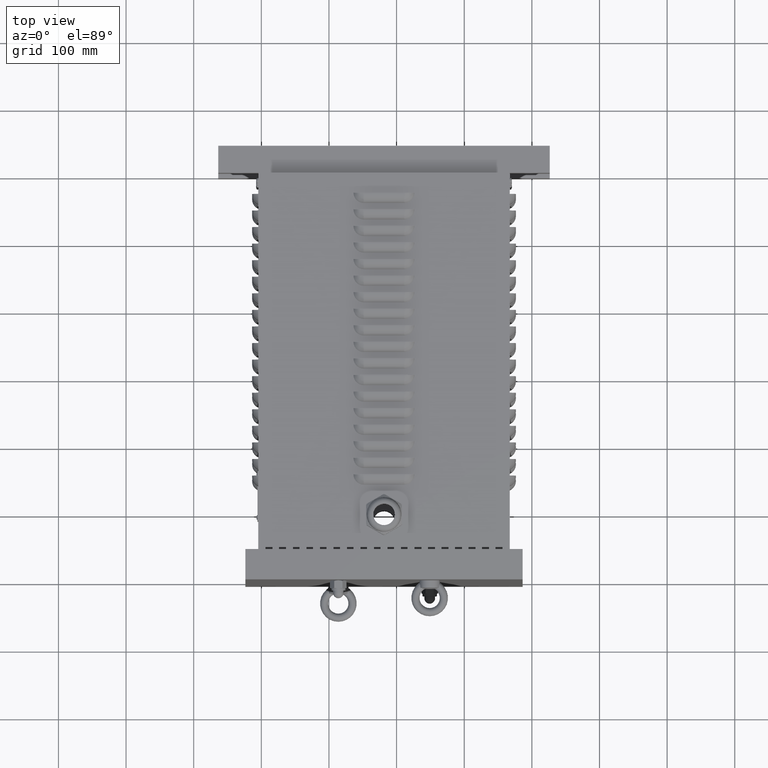
[diagram: clean part render]
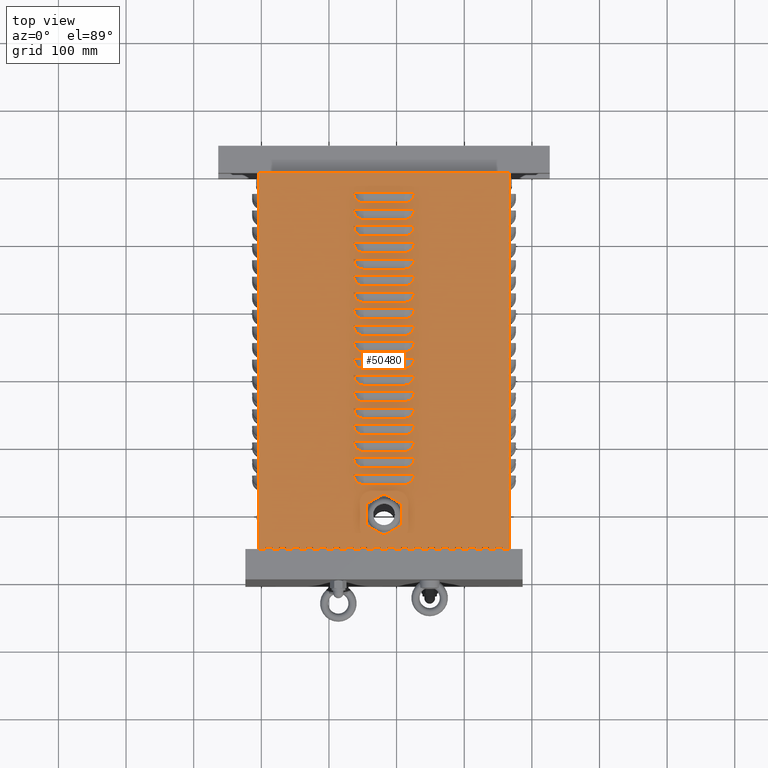
[diagram: same view with one face highlighted and labeled with its STEP entity id]
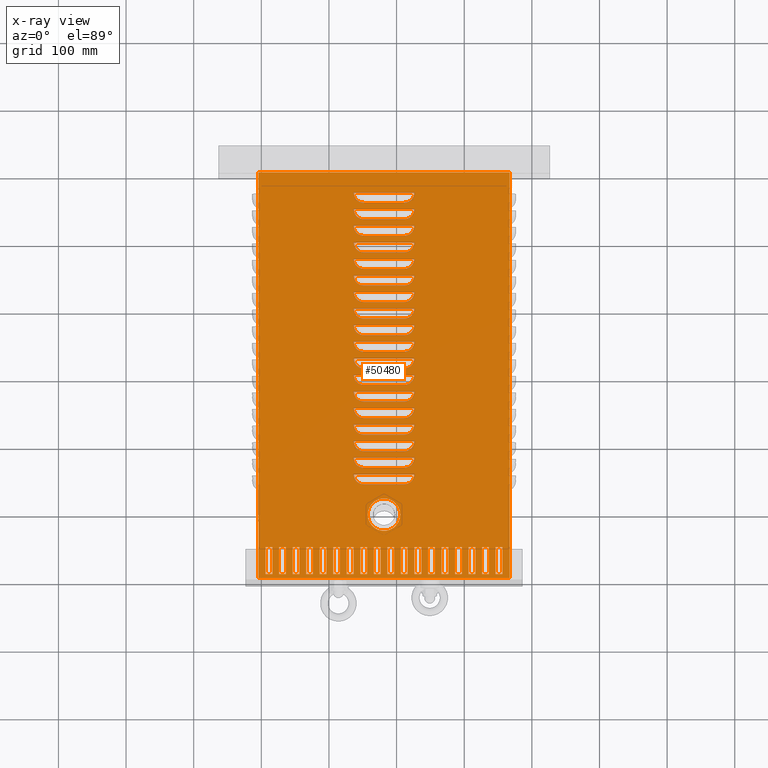
[diagram: x-ray of the same camera — body ghosted, the highlighted face saturated]
A machine part, top view. The second image highlights one B-rep face of the part: STEP entity #50480.
The next image is the same camera in x-ray: the body ghosted, the highlighted face saturated — about 0% of this face is hidden behind the body in this view.
In plain terms, the highlighted planar face has unit normal (0, 0, 1).
Its self-contained STEP definition (entity closure, byte-faithful):
#253=FACE_BOUND('',#11878,.T.);
#254=FACE_BOUND('',#11879,.T.);
#255=FACE_BOUND('',#11880,.T.);
#256=FACE_BOUND('',#11881,.T.);
#257=FACE_BOUND('',#11882,.T.);
#258=FACE_BOUND('',#11883,.T.);
#259=FACE_BOUND('',#11884,.T.);
#260=FACE_BOUND('',#11885,.T.);
#261=FACE_BOUND('',#11886,.T.);
#262=FACE_BOUND('',#11887,.T.);
#263=FACE_BOUND('',#11888,.T.);
#264=FACE_BOUND('',#11889,.T.);
#265=FACE_BOUND('',#11890,.T.);
#266=FACE_BOUND('',#11891,.T.);
#267=FACE_BOUND('',#11892,.T.);
#268=FACE_BOUND('',#11893,.T.);
#269=FACE_BOUND('',#11894,.T.);
#270=FACE_BOUND('',#11895,.T.);
#271=FACE_BOUND('',#11896,.T.);
#272=FACE_BOUND('',#11897,.T.);
#273=FACE_BOUND('',#11898,.T.);
#274=FACE_BOUND('',#11899,.T.);
#275=FACE_BOUND('',#11900,.T.);
#276=FACE_BOUND('',#11901,.T.);
#277=FACE_BOUND('',#11902,.T.);
#278=FACE_BOUND('',#11903,.T.);
#279=FACE_BOUND('',#11904,.T.);
#280=FACE_BOUND('',#11905,.T.);
#281=FACE_BOUND('',#11906,.T.);
#282=FACE_BOUND('',#11907,.T.);
#283=FACE_BOUND('',#11908,.T.);
#284=FACE_BOUND('',#11909,.T.);
#285=FACE_BOUND('',#11910,.T.);
#286=FACE_BOUND('',#11911,.T.);
#287=FACE_BOUND('',#11912,.T.);
#288=FACE_BOUND('',#11913,.T.);
#289=FACE_BOUND('',#11914,.T.);
#4418=CIRCLE('',#52611,24.);
#4914=CIRCLE('',#53618,14.9999999999999);
#4916=CIRCLE('',#53620,15.);
#4920=CIRCLE('',#53626,14.9999999999999);
#4922=CIRCLE('',#53628,15.);
#4926=CIRCLE('',#53634,14.9999999999999);
#4928=CIRCLE('',#53636,15.);
#4932=CIRCLE('',#53642,14.9999999999999);
#4934=CIRCLE('',#53644,15.);
#4938=CIRCLE('',#53650,14.9999999999999);
#4940=CIRCLE('',#53652,15.);
#4944=CIRCLE('',#53658,14.9999999999999);
#4946=CIRCLE('',#53660,15.);
#4950=CIRCLE('',#53666,14.9999999999999);
#4952=CIRCLE('',#53668,15.);
#4956=CIRCLE('',#53674,14.9999999999999);
#4958=CIRCLE('',#53676,15.);
#4962=CIRCLE('',#53682,14.9999999999999);
#4964=CIRCLE('',#53684,15.);
#4968=CIRCLE('',#53690,14.9999999999999);
#4970=CIRCLE('',#53692,15.);
#4974=CIRCLE('',#53698,14.9999999999999);
#4976=CIRCLE('',#53700,15.);
#4980=CIRCLE('',#53706,14.9999999999999);
#4982=CIRCLE('',#53708,15.);
#4986=CIRCLE('',#53714,14.9999999999999);
#4988=CIRCLE('',#53716,15.);
#4992=CIRCLE('',#53722,14.9999999999999);
#4994=CIRCLE('',#53724,15.);
#4998=CIRCLE('',#53730,14.9999999999999);
#5000=CIRCLE('',#53732,15.);
#5004=CIRCLE('',#53738,14.9999999999999);
#5006=CIRCLE('',#53740,15.);
#5010=CIRCLE('',#53746,14.9999999999999);
#5012=CIRCLE('',#53748,15.);
#5025=CIRCLE('',#53768,14.9999999999999);
#5027=CIRCLE('',#53770,15.);
#9303=FACE_OUTER_BOUND('',#11877,.T.);
#11877=EDGE_LOOP('',(#37998,#37999,#38000,#38001));
#11878=EDGE_LOOP('',(#38002,#38003,#38004,#38005));
#11879=EDGE_LOOP('',(#38006,#38007,#38008,#38009));
#11880=EDGE_LOOP('',(#38010,#38011,#38012,#38013));
#11881=EDGE_LOOP('',(#38014,#38015,#38016,#38017));
#11882=EDGE_LOOP('',(#38018,#38019,#38020,#38021));
#11883=EDGE_LOOP('',(#38022,#38023,#38024,#38025));
#11884=EDGE_LOOP('',(#38026,#38027,#38028,#38029));
#11885=EDGE_LOOP('',(#38030,#38031,#38032,#38033));
#11886=EDGE_LOOP('',(#38034,#38035,#38036,#38037));
#11887=EDGE_LOOP('',(#38038,#38039,#38040,#38041));
#11888=EDGE_LOOP('',(#38042,#38043,#38044,#38045));
#11889=EDGE_LOOP('',(#38046,#38047,#38048,#38049));
#11890=EDGE_LOOP('',(#38050,#38051,#38052,#38053));
#11891=EDGE_LOOP('',(#38054,#38055,#38056,#38057));
#11892=EDGE_LOOP('',(#38058,#38059,#38060,#38061));
#11893=EDGE_LOOP('',(#38062,#38063,#38064,#38065));
#11894=EDGE_LOOP('',(#38066,#38067,#38068,#38069));
#11895=EDGE_LOOP('',(#38070,#38071,#38072,#38073));
#11896=EDGE_LOOP('',(#38074));
#11897=EDGE_LOOP('',(#38075,#38076,#38077,#38078,#38079,#38080));
#11898=EDGE_LOOP('',(#38081,#38082,#38083,#38084,#38085,#38086));
#11899=EDGE_LOOP('',(#38087,#38088,#38089,#38090,#38091,#38092));
#11900=EDGE_LOOP('',(#38093,#38094,#38095,#38096,#38097,#38098));
#11901=EDGE_LOOP('',(#38099,#38100,#38101,#38102,#38103,#38104));
#11902=EDGE_LOOP('',(#38105,#38106,#38107,#38108,#38109,#38110));
#11903=EDGE_LOOP('',(#38111,#38112,#38113,#38114,#38115,#38116));
#11904=EDGE_LOOP('',(#38117,#38118,#38119,#38120,#38121,#38122));
#11905=EDGE_LOOP('',(#38123,#38124,#38125,#38126,#38127,#38128));
#11906=EDGE_LOOP('',(#38129,#38130,#38131,#38132,#38133,#38134));
#11907=EDGE_LOOP('',(#38135,#38136,#38137,#38138,#38139,#38140));
#11908=EDGE_LOOP('',(#38141,#38142,#38143,#38144,#38145,#38146));
#11909=EDGE_LOOP('',(#38147,#38148,#38149,#38150,#38151,#38152));
#11910=EDGE_LOOP('',(#38153,#38154,#38155,#38156,#38157,#38158));
#11911=EDGE_LOOP('',(#38159,#38160,#38161,#38162,#38163,#38164));
#11912=EDGE_LOOP('',(#38165,#38166,#38167,#38168,#38169,#38170));
#11913=EDGE_LOOP('',(#38171,#38172,#38173,#38174,#38175,#38176));
#11914=EDGE_LOOP('',(#38177,#38178,#38179,#38180,#38181,#38182));
#14888=LINE('',#71876,#18841);
#14896=LINE('',#71892,#18849);
#14901=LINE('',#71903,#18854);
#14904=LINE('',#71907,#18857);
#14912=LINE('',#71924,#18865);
#14920=LINE('',#71940,#18873);
#14925=LINE('',#71951,#18878);
#14928=LINE('',#71955,#18881);
#14936=LINE('',#71972,#18889);
#14944=LINE('',#71988,#18897);
#14949=LINE('',#71999,#18902);
#14952=LINE('',#72003,#18905);
#14960=LINE('',#72020,#18913);
#14968=LINE('',#72036,#18921);
#14973=LINE('',#72047,#18926);
#14976=LINE('',#72051,#18929);
#14984=LINE('',#72068,#18937);
#14992=LINE('',#72084,#18945);
#14997=LINE('',#72095,#18950);
#15000=LINE('',#72099,#18953);
#15008=LINE('',#72116,#18961);
#15016=LINE('',#72132,#18969);
#15021=LINE('',#72143,#18974);
#15024=LINE('',#72147,#18977);
#15032=LINE('',#72164,#18985);
#15040=LINE('',#72180,#18993);
#15045=LINE('',#72191,#18998);
#15048=LINE('',#72195,#19001);
#15056=LINE('',#72212,#19009);
#15064=LINE('',#72228,#19017);
#15069=LINE('',#72239,#19022);
#15072=LINE('',#72243,#19025);
#15080=LINE('',#72260,#19033);
#15088=LINE('',#72276,#19041);
#15093=LINE('',#72287,#19046);
#15096=LINE('',#72291,#19049);
#15104=LINE('',#72308,#19057);
#15112=LINE('',#72324,#19065);
#15117=LINE('',#72335,#19070);
#15120=LINE('',#72339,#19073);
#15128=LINE('',#72356,#19081);
#15136=LINE('',#72372,#19089);
#15141=LINE('',#72383,#19094);
#15144=LINE('',#72387,#19097);
#15152=LINE('',#72404,#19105);
#15160=LINE('',#72420,#19113);
#15165=LINE('',#72431,#19118);
#15168=LINE('',#72435,#19121);
#15176=LINE('',#72452,#19129);
#15184=LINE('',#72468,#19137);
#15189=LINE('',#72479,#19142);
#15192=LINE('',#72483,#19145);
#15200=LINE('',#72500,#19153);
#15208=LINE('',#72516,#19161);
#15213=LINE('',#72527,#19166);
#15216=LINE('',#72531,#19169);
#15224=LINE('',#72548,#19177);
#15232=LINE('',#72564,#19185);
#15237=LINE('',#72575,#19190);
#15240=LINE('',#72579,#19193);
#15248=LINE('',#72596,#19201);
#15256=LINE('',#72612,#19209);
#15261=LINE('',#72623,#19214);
#15264=LINE('',#72627,#19217);
#15272=LINE('',#72644,#19225);
#15280=LINE('',#72660,#19233);
#15285=LINE('',#72671,#19238);
#15288=LINE('',#72675,#19241);
#15296=LINE('',#72692,#19249);
#15304=LINE('',#72708,#19257);
#15309=LINE('',#72719,#19262);
#15312=LINE('',#72723,#19265);
#16377=LINE('',#76109,#20330);
#16388=LINE('',#76163,#20341);
#16399=LINE('',#76217,#20352);
#16410=LINE('',#76271,#20363);
#16421=LINE('',#76325,#20374);
#16432=LINE('',#76379,#20385);
#16443=LINE('',#76433,#20396);
#16454=LINE('',#76487,#20407);
#16465=LINE('',#76541,#20418);
#16476=LINE('',#76595,#20429);
#16487=LINE('',#76649,#20440);
#16498=LINE('',#76703,#20451);
#16509=LINE('',#76757,#20462);
#16520=LINE('',#76811,#20473);
#16531=LINE('',#76865,#20484);
#16542=LINE('',#76919,#20495);
#16553=LINE('',#76973,#20506);
#16555=LINE('',#76977,#20508);
#16557=LINE('',#76984,#20510);
#16558=LINE('',#76987,#20511);
#16560=LINE('',#76994,#20513);
#16561=LINE('',#76997,#20514);
#16563=LINE('',#77004,#20516);
#16564=LINE('',#77007,#20517);
#16566=LINE('',#77014,#20519);
#16567=LINE('',#77017,#20520);
#16569=LINE('',#77024,#20522);
#16570=LINE('',#77027,#20523);
#16572=LINE('',#77034,#20525);
#16573=LINE('',#77037,#20526);
#16575=LINE('',#77044,#20528);
#16576=LINE('',#77047,#20529);
#16578=LINE('',#77054,#20531);
#16579=LINE('',#77057,#20532);
#16581=LINE('',#77064,#20534);
#16582=LINE('',#77067,#20535);
#16584=LINE('',#77074,#20537);
#16585=LINE('',#77077,#20538);
#16587=LINE('',#77084,#20540);
#16588=LINE('',#77087,#20541);
#16590=LINE('',#77094,#20543);
#16591=LINE('',#77097,#20544);
#16593=LINE('',#77104,#20546);
#16594=LINE('',#77107,#20547);
#16596=LINE('',#77114,#20549);
#16597=LINE('',#77117,#20550);
#16599=LINE('',#77124,#20552);
#16600=LINE('',#77127,#20553);
#16602=LINE('',#77134,#20555);
#16603=LINE('',#77137,#20556);
#16605=LINE('',#77144,#20558);
#16607=LINE('',#77175,#20560);
#16609=LINE('',#77207,#20562);
#16611=LINE('',#77239,#20564);
#16613=LINE('',#77271,#20566);
#16615=LINE('',#77303,#20568);
#16617=LINE('',#77335,#20570);
#16619=LINE('',#77367,#20572);
#16621=LINE('',#77399,#20574);
#16623=LINE('',#77431,#20576);
#16625=LINE('',#77463,#20578);
#16627=LINE('',#77495,#20580);
#16629=LINE('',#77527,#20582);
#16631=LINE('',#77559,#20584);
#16633=LINE('',#77591,#20586);
#16635=LINE('',#77623,#20588);
#16637=LINE('',#77655,#20590);
#16639=LINE('',#77687,#20592);
#16643=LINE('',#77702,#20596);
#16651=LINE('',#77780,#20604);
#16652=LINE('',#77782,#20605);
#16653=LINE('',#77784,#20606);
#16654=LINE('',#77785,#20607);
#16655=LINE('',#77786,#20608);
#16656=LINE('',#77787,#20609);
#16657=LINE('',#77788,#20610);
#18841=VECTOR('',#57622,10.);
#18849=VECTOR('',#57634,10.);
#18854=VECTOR('',#57643,10.);
#18857=VECTOR('',#57648,10.);
#18865=VECTOR('',#57662,10.);
#18873=VECTOR('',#57674,10.);
#18878=VECTOR('',#57683,10.);
#18881=VECTOR('',#57688,10.);
#18889=VECTOR('',#57702,10.);
#18897=VECTOR('',#57714,10.);
#18902=VECTOR('',#57723,10.);
#18905=VECTOR('',#57728,10.);
#18913=VECTOR('',#57742,10.);
#18921=VECTOR('',#57754,10.);
#18926=VECTOR('',#57763,10.);
#18929=VECTOR('',#57768,10.);
#18937=VECTOR('',#57782,10.);
#18945=VECTOR('',#57794,10.);
#18950=VECTOR('',#57803,10.);
#18953=VECTOR('',#57808,10.);
#18961=VECTOR('',#57822,10.);
#18969=VECTOR('',#57834,10.);
#18974=VECTOR('',#57843,10.);
#18977=VECTOR('',#57848,10.);
#18985=VECTOR('',#57862,10.);
#18993=VECTOR('',#57874,10.);
#18998=VECTOR('',#57883,10.);
#19001=VECTOR('',#57888,10.);
#19009=VECTOR('',#57902,10.);
#19017=VECTOR('',#57914,10.);
#19022=VECTOR('',#57923,10.);
#19025=VECTOR('',#57928,10.);
#19033=VECTOR('',#57942,10.);
#19041=VECTOR('',#57954,10.);
#19046=VECTOR('',#57963,10.);
#19049=VECTOR('',#57968,10.);
#19057=VECTOR('',#57982,10.);
#19065=VECTOR('',#57994,10.);
#19070=VECTOR('',#58003,10.);
#19073=VECTOR('',#58008,10.);
#19081=VECTOR('',#58022,10.);
#19089=VECTOR('',#58034,10.);
#19094=VECTOR('',#58043,10.);
#19097=VECTOR('',#58048,10.);
#19105=VECTOR('',#58062,10.);
#19113=VECTOR('',#58074,10.);
#19118=VECTOR('',#58083,10.);
#19121=VECTOR('',#58088,10.);
#19129=VECTOR('',#58102,10.);
#19137=VECTOR('',#58114,10.);
#19142=VECTOR('',#58123,10.);
#19145=VECTOR('',#58128,10.);
#19153=VECTOR('',#58142,10.);
#19161=VECTOR('',#58154,10.);
#19166=VECTOR('',#58163,10.);
#19169=VECTOR('',#58168,10.);
#19177=VECTOR('',#58182,10.);
#19185=VECTOR('',#58194,10.);
#19190=VECTOR('',#58203,10.);
#19193=VECTOR('',#58208,10.);
#19201=VECTOR('',#58222,10.);
#19209=VECTOR('',#58234,10.);
#19214=VECTOR('',#58243,10.);
#19217=VECTOR('',#58248,10.);
#19225=VECTOR('',#58262,10.);
#19233=VECTOR('',#58274,10.);
#19238=VECTOR('',#58283,10.);
#19241=VECTOR('',#58288,10.);
#19249=VECTOR('',#58302,10.);
#19257=VECTOR('',#58314,10.);
#19262=VECTOR('',#58323,10.);
#19265=VECTOR('',#58328,10.);
#20330=VECTOR('',#60891,10.);
#20341=VECTOR('',#60928,10.);
#20352=VECTOR('',#60965,10.);
#20363=VECTOR('',#61002,10.);
#20374=VECTOR('',#61039,10.);
#20385=VECTOR('',#61076,10.);
#20396=VECTOR('',#61113,10.);
#20407=VECTOR('',#61150,10.);
#20418=VECTOR('',#61187,10.);
#20429=VECTOR('',#61224,10.);
#20440=VECTOR('',#61261,10.);
#20451=VECTOR('',#61298,10.);
#20462=VECTOR('',#61335,10.);
#20473=VECTOR('',#61372,10.);
#20484=VECTOR('',#61409,10.);
#20495=VECTOR('',#61446,10.);
#20506=VECTOR('',#61483,10.);
#20508=VECTOR('',#61487,10.);
#20510=VECTOR('',#61493,10.);
#20511=VECTOR('',#61496,10.);
#20513=VECTOR('',#61502,10.);
#20514=VECTOR('',#61505,10.);
#20516=VECTOR('',#61511,10.);
#20517=VECTOR('',#61514,10.);
#20519=VECTOR('',#61520,10.);
#20520=VECTOR('',#61523,10.);
#20522=VECTOR('',#61529,10.);
#20523=VECTOR('',#61532,10.);
#20525=VECTOR('',#61538,10.);
#20526=VECTOR('',#61541,10.);
#20528=VECTOR('',#61547,10.);
#20529=VECTOR('',#61550,10.);
#20531=VECTOR('',#61556,10.);
#20532=VECTOR('',#61559,10.);
#20534=VECTOR('',#61565,10.);
#20535=VECTOR('',#61568,10.);
#20537=VECTOR('',#61574,10.);
#20538=VECTOR('',#61577,10.);
#20540=VECTOR('',#61583,10.);
#20541=VECTOR('',#61586,10.);
#20543=VECTOR('',#61592,10.);
#20544=VECTOR('',#61595,10.);
#20546=VECTOR('',#61601,10.);
#20547=VECTOR('',#61604,10.);
#20549=VECTOR('',#61610,10.);
#20550=VECTOR('',#61613,10.);
#20552=VECTOR('',#61619,10.);
#20553=VECTOR('',#61622,10.);
#20555=VECTOR('',#61628,10.);
#20556=VECTOR('',#61631,10.);
#20558=VECTOR('',#61637,10.);
#20560=VECTOR('',#61653,10.);
#20562=VECTOR('',#61671,10.);
#20564=VECTOR('',#61689,10.);
#20566=VECTOR('',#61707,10.);
#20568=VECTOR('',#61725,10.);
#20570=VECTOR('',#61743,10.);
#20572=VECTOR('',#61761,10.);
#20574=VECTOR('',#61779,10.);
#20576=VECTOR('',#61797,10.);
#20578=VECTOR('',#61815,10.);
#20580=VECTOR('',#61833,10.);
#20582=VECTOR('',#61851,10.);
#20584=VECTOR('',#61869,10.);
#20586=VECTOR('',#61887,10.);
#20588=VECTOR('',#61905,10.);
#20590=VECTOR('',#61923,10.);
#20592=VECTOR('',#61941,10.);
#20596=VECTOR('',#61955,10.);
#20604=VECTOR('',#61999,10.);
#20605=VECTOR('',#62000,10.);
#20606=VECTOR('',#62001,10.);
#20607=VECTOR('',#62002,10.);
#20608=VECTOR('',#62003,10.);
#20609=VECTOR('',#62004,10.);
#20610=VECTOR('',#62005,10.);
#22794=VERTEX_POINT('',#71873);
#22795=VERTEX_POINT('',#71875);
#22801=VERTEX_POINT('',#71890);
#22805=VERTEX_POINT('',#71902);
#22810=VERTEX_POINT('',#71921);
#22811=VERTEX_POINT('',#71923);
#22817=VERTEX_POINT('',#71938);
#22821=VERTEX_POINT('',#71950);
#22826=VERTEX_POINT('',#71969);
#22827=VERTEX_POINT('',#71971);
#22833=VERTEX_POINT('',#71986);
#22837=VERTEX_POINT('',#71998);
#22842=VERTEX_POINT('',#72017);
#22843=VERTEX_POINT('',#72019);
#22849=VERTEX_POINT('',#72034);
#22853=VERTEX_POINT('',#72046);
#22858=VERTEX_POINT('',#72065);
#22859=VERTEX_POINT('',#72067);
#22865=VERTEX_POINT('',#72082);
#22869=VERTEX_POINT('',#72094);
#22874=VERTEX_POINT('',#72113);
#22875=VERTEX_POINT('',#72115);
#22881=VERTEX_POINT('',#72130);
#22885=VERTEX_POINT('',#72142);
#22890=VERTEX_POINT('',#72161);
#22891=VERTEX_POINT('',#72163);
#22897=VERTEX_POINT('',#72178);
#22901=VERTEX_POINT('',#72190);
#22906=VERTEX_POINT('',#72209);
#22907=VERTEX_POINT('',#72211);
#22913=VERTEX_POINT('',#72226);
#22917=VERTEX_POINT('',#72238);
#22922=VERTEX_POINT('',#72257);
#22923=VERTEX_POINT('',#72259);
#22929=VERTEX_POINT('',#72274);
#22933=VERTEX_POINT('',#72286);
#22938=VERTEX_POINT('',#72305);
#22939=VERTEX_POINT('',#72307);
#22945=VERTEX_POINT('',#72322);
#22949=VERTEX_POINT('',#72334);
#22954=VERTEX_POINT('',#72353);
#22955=VERTEX_POINT('',#72355);
#22961=VERTEX_POINT('',#72370);
#22965=VERTEX_POINT('',#72382);
#22970=VERTEX_POINT('',#72401);
#22971=VERTEX_POINT('',#72403);
#22977=VERTEX_POINT('',#72418);
#22981=VERTEX_POINT('',#72430);
#22986=VERTEX_POINT('',#72449);
#22987=VERTEX_POINT('',#72451);
#22993=VERTEX_POINT('',#72466);
#22997=VERTEX_POINT('',#72478);
#23002=VERTEX_POINT('',#72497);
#23003=VERTEX_POINT('',#72499);
#23009=VERTEX_POINT('',#72514);
#23013=VERTEX_POINT('',#72526);
#23018=VERTEX_POINT('',#72545);
#23019=VERTEX_POINT('',#72547);
#23025=VERTEX_POINT('',#72562);
#23029=VERTEX_POINT('',#72574);
#23034=VERTEX_POINT('',#72593);
#23035=VERTEX_POINT('',#72595);
#23041=VERTEX_POINT('',#72610);
#23045=VERTEX_POINT('',#72622);
#23050=VERTEX_POINT('',#72641);
#23051=VERTEX_POINT('',#72643);
#23057=VERTEX_POINT('',#72658);
#23061=VERTEX_POINT('',#72670);
#23066=VERTEX_POINT('',#72689);
#23067=VERTEX_POINT('',#72691);
#23073=VERTEX_POINT('',#72706);
#23077=VERTEX_POINT('',#72718);
#23080=VERTEX_POINT('',#72734);
#23976=VERTEX_POINT('',#76065);
#23979=VERTEX_POINT('',#76072);
#23988=VERTEX_POINT('',#76119);
#23991=VERTEX_POINT('',#76126);
#24000=VERTEX_POINT('',#76173);
#24003=VERTEX_POINT('',#76180);
#24012=VERTEX_POINT('',#76227);
#24015=VERTEX_POINT('',#76234);
#24024=VERTEX_POINT('',#76281);
#24027=VERTEX_POINT('',#76288);
#24036=VERTEX_POINT('',#76335);
#24039=VERTEX_POINT('',#76342);
#24048=VERTEX_POINT('',#76389);
#24051=VERTEX_POINT('',#76396);
#24060=VERTEX_POINT('',#76443);
#24063=VERTEX_POINT('',#76450);
#24072=VERTEX_POINT('',#76497);
#24075=VERTEX_POINT('',#76504);
#24084=VERTEX_POINT('',#76551);
#24087=VERTEX_POINT('',#76558);
#24096=VERTEX_POINT('',#76605);
#24099=VERTEX_POINT('',#76612);
#24108=VERTEX_POINT('',#76659);
#24111=VERTEX_POINT('',#76666);
#24120=VERTEX_POINT('',#76713);
#24123=VERTEX_POINT('',#76720);
#24132=VERTEX_POINT('',#76767);
#24135=VERTEX_POINT('',#76774);
#24144=VERTEX_POINT('',#76821);
#24147=VERTEX_POINT('',#76828);
#24156=VERTEX_POINT('',#76875);
#24159=VERTEX_POINT('',#76882);
#24168=VERTEX_POINT('',#76929);
#24171=VERTEX_POINT('',#76936);
#24176=VERTEX_POINT('',#76976);
#24179=VERTEX_POINT('',#76982);
#24180=VERTEX_POINT('',#76986);
#24183=VERTEX_POINT('',#76992);
#24184=VERTEX_POINT('',#76996);
#24187=VERTEX_POINT('',#77002);
#24188=VERTEX_POINT('',#77006);
#24191=VERTEX_POINT('',#77012);
#24192=VERTEX_POINT('',#77016);
#24195=VERTEX_POINT('',#77022);
#24196=VERTEX_POINT('',#77026);
#24199=VERTEX_POINT('',#77032);
#24200=VERTEX_POINT('',#77036);
#24203=VERTEX_POINT('',#77042);
#24204=VERTEX_POINT('',#77046);
#24207=VERTEX_POINT('',#77052);
#24208=VERTEX_POINT('',#77056);
#24211=VERTEX_POINT('',#77062);
#24212=VERTEX_POINT('',#77066);
#24215=VERTEX_POINT('',#77072);
#24216=VERTEX_POINT('',#77076);
#24219=VERTEX_POINT('',#77082);
#24220=VERTEX_POINT('',#77086);
#24223=VERTEX_POINT('',#77092);
#24224=VERTEX_POINT('',#77096);
#24227=VERTEX_POINT('',#77102);
#24228=VERTEX_POINT('',#77106);
#24231=VERTEX_POINT('',#77112);
#24232=VERTEX_POINT('',#77116);
#24235=VERTEX_POINT('',#77122);
#24236=VERTEX_POINT('',#77126);
#24239=VERTEX_POINT('',#77132);
#24240=VERTEX_POINT('',#77136);
#24243=VERTEX_POINT('',#77142);
#24245=VERTEX_POINT('',#77155);
#24246=VERTEX_POINT('',#77168);
#24249=VERTEX_POINT('',#77187);
#24250=VERTEX_POINT('',#77200);
#24253=VERTEX_POINT('',#77219);
#24254=VERTEX_POINT('',#77232);
#24257=VERTEX_POINT('',#77251);
#24258=VERTEX_POINT('',#77264);
#24261=VERTEX_POINT('',#77283);
#24262=VERTEX_POINT('',#77296);
#24265=VERTEX_POINT('',#77315);
#24266=VERTEX_POINT('',#77328);
#24269=VERTEX_POINT('',#77347);
#24270=VERTEX_POINT('',#77360);
#24273=VERTEX_POINT('',#77379);
#24274=VERTEX_POINT('',#77392);
#24277=VERTEX_POINT('',#77411);
#24278=VERTEX_POINT('',#77424);
#24281=VERTEX_POINT('',#77443);
#24282=VERTEX_POINT('',#77456);
#24285=VERTEX_POINT('',#77475);
#24286=VERTEX_POINT('',#77488);
#24289=VERTEX_POINT('',#77507);
#24290=VERTEX_POINT('',#77520);
#24293=VERTEX_POINT('',#77539);
#24294=VERTEX_POINT('',#77552);
#24297=VERTEX_POINT('',#77571);
#24298=VERTEX_POINT('',#77584);
#24301=VERTEX_POINT('',#77603);
#24302=VERTEX_POINT('',#77616);
#24305=VERTEX_POINT('',#77635);
#24306=VERTEX_POINT('',#77648);
#24309=VERTEX_POINT('',#77667);
#24310=VERTEX_POINT('',#77680);
#24314=VERTEX_POINT('',#77693);
#24317=VERTEX_POINT('',#77701);
#24325=VERTEX_POINT('',#77753);
#24327=VERTEX_POINT('',#77757);
#24328=VERTEX_POINT('',#77769);
#24330=VERTEX_POINT('',#77772);
#24332=VERTEX_POINT('',#77778);
#24333=VERTEX_POINT('',#77779);
#24334=VERTEX_POINT('',#77781);
#24335=VERTEX_POINT('',#77783);
#27342=EDGE_CURVE('',#22795,#22794,#14888,.T.);
#27350=EDGE_CURVE('',#22794,#22801,#14896,.T.);
#27355=EDGE_CURVE('',#22805,#22795,#14901,.T.);
#27358=EDGE_CURVE('',#22801,#22805,#14904,.T.);
#27366=EDGE_CURVE('',#22811,#22810,#14912,.T.);
#27374=EDGE_CURVE('',#22810,#22817,#14920,.T.);
#27379=EDGE_CURVE('',#22821,#22811,#14925,.T.);
#27382=EDGE_CURVE('',#22817,#22821,#14928,.T.);
#27390=EDGE_CURVE('',#22827,#22826,#14936,.T.);
#27398=EDGE_CURVE('',#22826,#22833,#14944,.T.);
#27403=EDGE_CURVE('',#22837,#22827,#14949,.T.);
#27406=EDGE_CURVE('',#22833,#22837,#14952,.T.);
#27414=EDGE_CURVE('',#22843,#22842,#14960,.T.);
#27422=EDGE_CURVE('',#22842,#22849,#14968,.T.);
#27427=EDGE_CURVE('',#22853,#22843,#14973,.T.);
#27430=EDGE_CURVE('',#22849,#22853,#14976,.T.);
#27438=EDGE_CURVE('',#22859,#22858,#14984,.T.);
#27446=EDGE_CURVE('',#22858,#22865,#14992,.T.);
#27451=EDGE_CURVE('',#22869,#22859,#14997,.T.);
#27454=EDGE_CURVE('',#22865,#22869,#15000,.T.);
#27462=EDGE_CURVE('',#22875,#22874,#15008,.T.);
#27470=EDGE_CURVE('',#22874,#22881,#15016,.T.);
#27475=EDGE_CURVE('',#22885,#22875,#15021,.T.);
#27478=EDGE_CURVE('',#22881,#22885,#15024,.T.);
#27486=EDGE_CURVE('',#22891,#22890,#15032,.T.);
#27494=EDGE_CURVE('',#22890,#22897,#15040,.T.);
#27499=EDGE_CURVE('',#22901,#22891,#15045,.T.);
#27502=EDGE_CURVE('',#22897,#22901,#15048,.T.);
#27510=EDGE_CURVE('',#22907,#22906,#15056,.T.);
#27518=EDGE_CURVE('',#22906,#22913,#15064,.T.);
#27523=EDGE_CURVE('',#22917,#22907,#15069,.T.);
#27526=EDGE_CURVE('',#22913,#22917,#15072,.T.);
#27534=EDGE_CURVE('',#22923,#22922,#15080,.T.);
#27542=EDGE_CURVE('',#22922,#22929,#15088,.T.);
#27547=EDGE_CURVE('',#22933,#22923,#15093,.T.);
#27550=EDGE_CURVE('',#22929,#22933,#15096,.T.);
#27558=EDGE_CURVE('',#22939,#22938,#15104,.T.);
#27566=EDGE_CURVE('',#22938,#22945,#15112,.T.);
#27571=EDGE_CURVE('',#22949,#22939,#15117,.T.);
#27574=EDGE_CURVE('',#22945,#22949,#15120,.T.);
#27582=EDGE_CURVE('',#22955,#22954,#15128,.T.);
#27590=EDGE_CURVE('',#22954,#22961,#15136,.T.);
#27595=EDGE_CURVE('',#22965,#22955,#15141,.T.);
#27598=EDGE_CURVE('',#22961,#22965,#15144,.T.);
#27606=EDGE_CURVE('',#22971,#22970,#15152,.T.);
#27614=EDGE_CURVE('',#22970,#22977,#15160,.T.);
#27619=EDGE_CURVE('',#22981,#22971,#15165,.T.);
#27622=EDGE_CURVE('',#22977,#22981,#15168,.T.);
#27630=EDGE_CURVE('',#22987,#22986,#15176,.T.);
#27638=EDGE_CURVE('',#22986,#22993,#15184,.T.);
#27643=EDGE_CURVE('',#22997,#22987,#15189,.T.);
#27646=EDGE_CURVE('',#22993,#22997,#15192,.T.);
#27654=EDGE_CURVE('',#23003,#23002,#15200,.T.);
#27662=EDGE_CURVE('',#23002,#23009,#15208,.T.);
#27667=EDGE_CURVE('',#23013,#23003,#15213,.T.);
#27670=EDGE_CURVE('',#23009,#23013,#15216,.T.);
#27678=EDGE_CURVE('',#23019,#23018,#15224,.T.);
#27686=EDGE_CURVE('',#23018,#23025,#15232,.T.);
#27691=EDGE_CURVE('',#23029,#23019,#15237,.T.);
#27694=EDGE_CURVE('',#23025,#23029,#15240,.T.);
#27702=EDGE_CURVE('',#23035,#23034,#15248,.T.);
#27710=EDGE_CURVE('',#23034,#23041,#15256,.T.);
#27715=EDGE_CURVE('',#23045,#23035,#15261,.T.);
#27718=EDGE_CURVE('',#23041,#23045,#15264,.T.);
#27726=EDGE_CURVE('',#23051,#23050,#15272,.T.);
#27734=EDGE_CURVE('',#23050,#23057,#15280,.T.);
#27739=EDGE_CURVE('',#23061,#23051,#15285,.T.);
#27742=EDGE_CURVE('',#23057,#23061,#15288,.T.);
#27750=EDGE_CURVE('',#23067,#23066,#15296,.T.);
#27758=EDGE_CURVE('',#23066,#23073,#15304,.T.);
#27763=EDGE_CURVE('',#23077,#23067,#15309,.T.);
#27766=EDGE_CURVE('',#23073,#23077,#15312,.T.);
#27772=EDGE_CURVE('',#23080,#23080,#4418,.T.);
#29163=EDGE_CURVE('',#23979,#23976,#16377,.T.);
#29182=EDGE_CURVE('',#23991,#23988,#16388,.T.);
#29201=EDGE_CURVE('',#24003,#24000,#16399,.T.);
#29220=EDGE_CURVE('',#24015,#24012,#16410,.T.);
#29239=EDGE_CURVE('',#24027,#24024,#16421,.T.);
#29258=EDGE_CURVE('',#24039,#24036,#16432,.T.);
#29277=EDGE_CURVE('',#24051,#24048,#16443,.T.);
#29296=EDGE_CURVE('',#24063,#24060,#16454,.T.);
#29315=EDGE_CURVE('',#24075,#24072,#16465,.T.);
#29334=EDGE_CURVE('',#24087,#24084,#16476,.T.);
#29353=EDGE_CURVE('',#24099,#24096,#16487,.T.);
#29372=EDGE_CURVE('',#24111,#24108,#16498,.T.);
#29391=EDGE_CURVE('',#24123,#24120,#16509,.T.);
#29410=EDGE_CURVE('',#24135,#24132,#16520,.T.);
#29429=EDGE_CURVE('',#24147,#24144,#16531,.T.);
#29448=EDGE_CURVE('',#24159,#24156,#16542,.T.);
#29467=EDGE_CURVE('',#24171,#24168,#16553,.T.);
#29469=EDGE_CURVE('',#24176,#23979,#16555,.T.);
#29473=EDGE_CURVE('',#23976,#24179,#16557,.T.);
#29474=EDGE_CURVE('',#24180,#23991,#16558,.T.);
#29478=EDGE_CURVE('',#23988,#24183,#16560,.T.);
#29479=EDGE_CURVE('',#24184,#24003,#16561,.T.);
#29483=EDGE_CURVE('',#24000,#24187,#16563,.T.);
#29484=EDGE_CURVE('',#24188,#24015,#16564,.T.);
#29488=EDGE_CURVE('',#24012,#24191,#16566,.T.);
#29489=EDGE_CURVE('',#24192,#24027,#16567,.T.);
#29493=EDGE_CURVE('',#24024,#24195,#16569,.T.);
#29494=EDGE_CURVE('',#24196,#24039,#16570,.T.);
#29498=EDGE_CURVE('',#24036,#24199,#16572,.T.);
#29499=EDGE_CURVE('',#24200,#24051,#16573,.T.);
#29503=EDGE_CURVE('',#24048,#24203,#16575,.T.);
#29504=EDGE_CURVE('',#24204,#24063,#16576,.T.);
#29508=EDGE_CURVE('',#24060,#24207,#16578,.T.);
#29509=EDGE_CURVE('',#24208,#24075,#16579,.T.);
#29513=EDGE_CURVE('',#24072,#24211,#16581,.T.);
#29514=EDGE_CURVE('',#24212,#24087,#16582,.T.);
#29518=EDGE_CURVE('',#24084,#24215,#16584,.T.);
#29519=EDGE_CURVE('',#24216,#24099,#16585,.T.);
#29523=EDGE_CURVE('',#24096,#24219,#16587,.T.);
#29524=EDGE_CURVE('',#24220,#24111,#16588,.T.);
#29528=EDGE_CURVE('',#24108,#24223,#16590,.T.);
#29529=EDGE_CURVE('',#24224,#24123,#16591,.T.);
#29533=EDGE_CURVE('',#24120,#24227,#16593,.T.);
#29534=EDGE_CURVE('',#24228,#24135,#16594,.T.);
#29538=EDGE_CURVE('',#24132,#24231,#16596,.T.);
#29539=EDGE_CURVE('',#24232,#24147,#16597,.T.);
#29543=EDGE_CURVE('',#24144,#24235,#16599,.T.);
#29544=EDGE_CURVE('',#24236,#24159,#16600,.T.);
#29548=EDGE_CURVE('',#24156,#24239,#16602,.T.);
#29549=EDGE_CURVE('',#24240,#24171,#16603,.T.);
#29553=EDGE_CURVE('',#24168,#24243,#16605,.T.);
#29556=EDGE_CURVE('',#24245,#24176,#4914,.T.);
#29558=EDGE_CURVE('',#24179,#24246,#4916,.T.);
#29561=EDGE_CURVE('',#24246,#24245,#16607,.T.);
#29564=EDGE_CURVE('',#24249,#24180,#4920,.T.);
#29566=EDGE_CURVE('',#24183,#24250,#4922,.T.);
#29569=EDGE_CURVE('',#24250,#24249,#16609,.T.);
#29572=EDGE_CURVE('',#24253,#24184,#4926,.T.);
#29574=EDGE_CURVE('',#24187,#24254,#4928,.T.);
#29577=EDGE_CURVE('',#24254,#24253,#16611,.T.);
#29580=EDGE_CURVE('',#24257,#24188,#4932,.T.);
#29582=EDGE_CURVE('',#24191,#24258,#4934,.T.);
#29585=EDGE_CURVE('',#24258,#24257,#16613,.T.);
#29588=EDGE_CURVE('',#24261,#24192,#4938,.T.);
#29590=EDGE_CURVE('',#24195,#24262,#4940,.T.);
#29593=EDGE_CURVE('',#24262,#24261,#16615,.T.);
#29596=EDGE_CURVE('',#24265,#24196,#4944,.T.);
#29598=EDGE_CURVE('',#24199,#24266,#4946,.T.);
#29601=EDGE_CURVE('',#24266,#24265,#16617,.T.);
#29604=EDGE_CURVE('',#24269,#24200,#4950,.T.);
#29606=EDGE_CURVE('',#24203,#24270,#4952,.T.);
#29609=EDGE_CURVE('',#24270,#24269,#16619,.T.);
#29612=EDGE_CURVE('',#24273,#24204,#4956,.T.);
#29614=EDGE_CURVE('',#24207,#24274,#4958,.T.);
#29617=EDGE_CURVE('',#24274,#24273,#16621,.T.);
#29620=EDGE_CURVE('',#24277,#24208,#4962,.T.);
#29622=EDGE_CURVE('',#24211,#24278,#4964,.T.);
#29625=EDGE_CURVE('',#24278,#24277,#16623,.T.);
#29628=EDGE_CURVE('',#24281,#24212,#4968,.T.);
#29630=EDGE_CURVE('',#24215,#24282,#4970,.T.);
#29633=EDGE_CURVE('',#24282,#24281,#16625,.T.);
#29636=EDGE_CURVE('',#24285,#24216,#4974,.T.);
#29638=EDGE_CURVE('',#24219,#24286,#4976,.T.);
#29641=EDGE_CURVE('',#24286,#24285,#16627,.T.);
#29644=EDGE_CURVE('',#24289,#24220,#4980,.T.);
#29646=EDGE_CURVE('',#24223,#24290,#4982,.T.);
#29649=EDGE_CURVE('',#24290,#24289,#16629,.T.);
#29652=EDGE_CURVE('',#24293,#24224,#4986,.T.);
#29654=EDGE_CURVE('',#24227,#24294,#4988,.T.);
#29657=EDGE_CURVE('',#24294,#24293,#16631,.T.);
#29660=EDGE_CURVE('',#24297,#24228,#4992,.T.);
#29662=EDGE_CURVE('',#24231,#24298,#4994,.T.);
#29665=EDGE_CURVE('',#24298,#24297,#16633,.T.);
#29668=EDGE_CURVE('',#24301,#24232,#4998,.T.);
#29670=EDGE_CURVE('',#24235,#24302,#5000,.T.);
#29673=EDGE_CURVE('',#24302,#24301,#16635,.T.);
#29676=EDGE_CURVE('',#24305,#24236,#5004,.T.);
#29678=EDGE_CURVE('',#24239,#24306,#5006,.T.);
#29681=EDGE_CURVE('',#24306,#24305,#16637,.T.);
#29684=EDGE_CURVE('',#24309,#24240,#5010,.T.);
#29686=EDGE_CURVE('',#24243,#24310,#5012,.T.);
#29689=EDGE_CURVE('',#24310,#24309,#16639,.T.);
#29695=EDGE_CURVE('',#24314,#24317,#16643,.T.);
#29712=EDGE_CURVE('',#24325,#24327,#5025,.T.);
#29714=EDGE_CURVE('',#24330,#24328,#5027,.T.);
#29717=EDGE_CURVE('',#24332,#24333,#16651,.T.);
#29718=EDGE_CURVE('',#24333,#24334,#16652,.T.);
#29719=EDGE_CURVE('',#24335,#24334,#16653,.T.);
#29720=EDGE_CURVE('',#24332,#24335,#16654,.T.);
#29721=EDGE_CURVE('',#24327,#24314,#16655,.T.);
#29722=EDGE_CURVE('',#24317,#24330,#16656,.T.);
#29723=EDGE_CURVE('',#24328,#24325,#16657,.T.);
#37998=ORIENTED_EDGE('',*,*,#29717,.T.);
#37999=ORIENTED_EDGE('',*,*,#29718,.T.);
#38000=ORIENTED_EDGE('',*,*,#29719,.F.);
#38001=ORIENTED_EDGE('',*,*,#29720,.F.);
#38002=ORIENTED_EDGE('',*,*,#27358,.T.);
#38003=ORIENTED_EDGE('',*,*,#27355,.T.);
#38004=ORIENTED_EDGE('',*,*,#27342,.T.);
#38005=ORIENTED_EDGE('',*,*,#27350,.T.);
#38006=ORIENTED_EDGE('',*,*,#27382,.T.);
#38007=ORIENTED_EDGE('',*,*,#27379,.T.);
#38008=ORIENTED_EDGE('',*,*,#27366,.T.);
#38009=ORIENTED_EDGE('',*,*,#27374,.T.);
#38010=ORIENTED_EDGE('',*,*,#27406,.T.);
#38011=ORIENTED_EDGE('',*,*,#27403,.T.);
#38012=ORIENTED_EDGE('',*,*,#27390,.T.);
#38013=ORIENTED_EDGE('',*,*,#27398,.T.);
#38014=ORIENTED_EDGE('',*,*,#27430,.T.);
#38015=ORIENTED_EDGE('',*,*,#27427,.T.);
#38016=ORIENTED_EDGE('',*,*,#27414,.T.);
#38017=ORIENTED_EDGE('',*,*,#27422,.T.);
#38018=ORIENTED_EDGE('',*,*,#27454,.T.);
#38019=ORIENTED_EDGE('',*,*,#27451,.T.);
#38020=ORIENTED_EDGE('',*,*,#27438,.T.);
#38021=ORIENTED_EDGE('',*,*,#27446,.T.);
#38022=ORIENTED_EDGE('',*,*,#27478,.T.);
#38023=ORIENTED_EDGE('',*,*,#27475,.T.);
#38024=ORIENTED_EDGE('',*,*,#27462,.T.);
#38025=ORIENTED_EDGE('',*,*,#27470,.T.);
#38026=ORIENTED_EDGE('',*,*,#27502,.T.);
#38027=ORIENTED_EDGE('',*,*,#27499,.T.);
#38028=ORIENTED_EDGE('',*,*,#27486,.T.);
#38029=ORIENTED_EDGE('',*,*,#27494,.T.);
#38030=ORIENTED_EDGE('',*,*,#27526,.T.);
#38031=ORIENTED_EDGE('',*,*,#27523,.T.);
#38032=ORIENTED_EDGE('',*,*,#27510,.T.);
#38033=ORIENTED_EDGE('',*,*,#27518,.T.);
#38034=ORIENTED_EDGE('',*,*,#27550,.T.);
#38035=ORIENTED_EDGE('',*,*,#27547,.T.);
#38036=ORIENTED_EDGE('',*,*,#27534,.T.);
#38037=ORIENTED_EDGE('',*,*,#27542,.T.);
#38038=ORIENTED_EDGE('',*,*,#27574,.T.);
#38039=ORIENTED_EDGE('',*,*,#27571,.T.);
#38040=ORIENTED_EDGE('',*,*,#27558,.T.);
#38041=ORIENTED_EDGE('',*,*,#27566,.T.);
#38042=ORIENTED_EDGE('',*,*,#27598,.T.);
#38043=ORIENTED_EDGE('',*,*,#27595,.T.);
#38044=ORIENTED_EDGE('',*,*,#27582,.T.);
#38045=ORIENTED_EDGE('',*,*,#27590,.T.);
#38046=ORIENTED_EDGE('',*,*,#27622,.T.);
#38047=ORIENTED_EDGE('',*,*,#27619,.T.);
#38048=ORIENTED_EDGE('',*,*,#27606,.T.);
#38049=ORIENTED_EDGE('',*,*,#27614,.T.);
#38050=ORIENTED_EDGE('',*,*,#27646,.T.);
#38051=ORIENTED_EDGE('',*,*,#27643,.T.);
#38052=ORIENTED_EDGE('',*,*,#27630,.T.);
#38053=ORIENTED_EDGE('',*,*,#27638,.T.);
#38054=ORIENTED_EDGE('',*,*,#27670,.T.);
#38055=ORIENTED_EDGE('',*,*,#27667,.T.);
#38056=ORIENTED_EDGE('',*,*,#27654,.T.);
#38057=ORIENTED_EDGE('',*,*,#27662,.T.);
#38058=ORIENTED_EDGE('',*,*,#27694,.T.);
#38059=ORIENTED_EDGE('',*,*,#27691,.T.);
#38060=ORIENTED_EDGE('',*,*,#27678,.T.);
#38061=ORIENTED_EDGE('',*,*,#27686,.T.);
#38062=ORIENTED_EDGE('',*,*,#27718,.T.);
#38063=ORIENTED_EDGE('',*,*,#27715,.T.);
#38064=ORIENTED_EDGE('',*,*,#27702,.T.);
#38065=ORIENTED_EDGE('',*,*,#27710,.T.);
#38066=ORIENTED_EDGE('',*,*,#27742,.T.);
#38067=ORIENTED_EDGE('',*,*,#27739,.T.);
#38068=ORIENTED_EDGE('',*,*,#27726,.T.);
#38069=ORIENTED_EDGE('',*,*,#27734,.T.);
#38070=ORIENTED_EDGE('',*,*,#27766,.T.);
#38071=ORIENTED_EDGE('',*,*,#27763,.T.);
#38072=ORIENTED_EDGE('',*,*,#27750,.T.);
#38073=ORIENTED_EDGE('',*,*,#27758,.T.);
#38074=ORIENTED_EDGE('',*,*,#27772,.T.);
#38075=ORIENTED_EDGE('',*,*,#29558,.T.);
#38076=ORIENTED_EDGE('',*,*,#29561,.T.);
#38077=ORIENTED_EDGE('',*,*,#29556,.T.);
#38078=ORIENTED_EDGE('',*,*,#29469,.T.);
#38079=ORIENTED_EDGE('',*,*,#29163,.T.);
#38080=ORIENTED_EDGE('',*,*,#29473,.T.);
#38081=ORIENTED_EDGE('',*,*,#29566,.T.);
#38082=ORIENTED_EDGE('',*,*,#29569,.T.);
#38083=ORIENTED_EDGE('',*,*,#29564,.T.);
#38084=ORIENTED_EDGE('',*,*,#29474,.T.);
#38085=ORIENTED_EDGE('',*,*,#29182,.T.);
#38086=ORIENTED_EDGE('',*,*,#29478,.T.);
#38087=ORIENTED_EDGE('',*,*,#29574,.T.);
#38088=ORIENTED_EDGE('',*,*,#29577,.T.);
#38089=ORIENTED_EDGE('',*,*,#29572,.T.);
#38090=ORIENTED_EDGE('',*,*,#29479,.T.);
#38091=ORIENTED_EDGE('',*,*,#29201,.T.);
#38092=ORIENTED_EDGE('',*,*,#29483,.T.);
#38093=ORIENTED_EDGE('',*,*,#29582,.T.);
#38094=ORIENTED_EDGE('',*,*,#29585,.T.);
#38095=ORIENTED_EDGE('',*,*,#29580,.T.);
#38096=ORIENTED_EDGE('',*,*,#29484,.T.);
#38097=ORIENTED_EDGE('',*,*,#29220,.T.);
#38098=ORIENTED_EDGE('',*,*,#29488,.T.);
#38099=ORIENTED_EDGE('',*,*,#29590,.T.);
#38100=ORIENTED_EDGE('',*,*,#29593,.T.);
#38101=ORIENTED_EDGE('',*,*,#29588,.T.);
#38102=ORIENTED_EDGE('',*,*,#29489,.T.);
#38103=ORIENTED_EDGE('',*,*,#29239,.T.);
#38104=ORIENTED_EDGE('',*,*,#29493,.T.);
#38105=ORIENTED_EDGE('',*,*,#29598,.T.);
#38106=ORIENTED_EDGE('',*,*,#29601,.T.);
#38107=ORIENTED_EDGE('',*,*,#29596,.T.);
#38108=ORIENTED_EDGE('',*,*,#29494,.T.);
#38109=ORIENTED_EDGE('',*,*,#29258,.T.);
#38110=ORIENTED_EDGE('',*,*,#29498,.T.);
#38111=ORIENTED_EDGE('',*,*,#29606,.T.);
#38112=ORIENTED_EDGE('',*,*,#29609,.T.);
#38113=ORIENTED_EDGE('',*,*,#29604,.T.);
#38114=ORIENTED_EDGE('',*,*,#29499,.T.);
#38115=ORIENTED_EDGE('',*,*,#29277,.T.);
#38116=ORIENTED_EDGE('',*,*,#29503,.T.);
#38117=ORIENTED_EDGE('',*,*,#29614,.T.);
#38118=ORIENTED_EDGE('',*,*,#29617,.T.);
#38119=ORIENTED_EDGE('',*,*,#29612,.T.);
#38120=ORIENTED_EDGE('',*,*,#29504,.T.);
#38121=ORIENTED_EDGE('',*,*,#29296,.T.);
#38122=ORIENTED_EDGE('',*,*,#29508,.T.);
#38123=ORIENTED_EDGE('',*,*,#29622,.T.);
#38124=ORIENTED_EDGE('',*,*,#29625,.T.);
#38125=ORIENTED_EDGE('',*,*,#29620,.T.);
#38126=ORIENTED_EDGE('',*,*,#29509,.T.);
#38127=ORIENTED_EDGE('',*,*,#29315,.T.);
#38128=ORIENTED_EDGE('',*,*,#29513,.T.);
#38129=ORIENTED_EDGE('',*,*,#29630,.T.);
#38130=ORIENTED_EDGE('',*,*,#29633,.T.);
#38131=ORIENTED_EDGE('',*,*,#29628,.T.);
#38132=ORIENTED_EDGE('',*,*,#29514,.T.);
#38133=ORIENTED_EDGE('',*,*,#29334,.T.);
#38134=ORIENTED_EDGE('',*,*,#29518,.T.);
#38135=ORIENTED_EDGE('',*,*,#29638,.T.);
#38136=ORIENTED_EDGE('',*,*,#29641,.T.);
#38137=ORIENTED_EDGE('',*,*,#29636,.T.);
#38138=ORIENTED_EDGE('',*,*,#29519,.T.);
#38139=ORIENTED_EDGE('',*,*,#29353,.T.);
#38140=ORIENTED_EDGE('',*,*,#29523,.T.);
#38141=ORIENTED_EDGE('',*,*,#29646,.T.);
#38142=ORIENTED_EDGE('',*,*,#29649,.T.);
#38143=ORIENTED_EDGE('',*,*,#29644,.T.);
#38144=ORIENTED_EDGE('',*,*,#29524,.T.);
#38145=ORIENTED_EDGE('',*,*,#29372,.T.);
#38146=ORIENTED_EDGE('',*,*,#29528,.T.);
#38147=ORIENTED_EDGE('',*,*,#29654,.T.);
#38148=ORIENTED_EDGE('',*,*,#29657,.T.);
#38149=ORIENTED_EDGE('',*,*,#29652,.T.);
#38150=ORIENTED_EDGE('',*,*,#29529,.T.);
#38151=ORIENTED_EDGE('',*,*,#29391,.T.);
#38152=ORIENTED_EDGE('',*,*,#29533,.T.);
#38153=ORIENTED_EDGE('',*,*,#29662,.T.);
#38154=ORIENTED_EDGE('',*,*,#29665,.T.);
#38155=ORIENTED_EDGE('',*,*,#29660,.T.);
#38156=ORIENTED_EDGE('',*,*,#29534,.T.);
#38157=ORIENTED_EDGE('',*,*,#29410,.T.);
#38158=ORIENTED_EDGE('',*,*,#29538,.T.);
#38159=ORIENTED_EDGE('',*,*,#29670,.T.);
#38160=ORIENTED_EDGE('',*,*,#29673,.T.);
#38161=ORIENTED_EDGE('',*,*,#29668,.T.);
#38162=ORIENTED_EDGE('',*,*,#29539,.T.);
#38163=ORIENTED_EDGE('',*,*,#29429,.T.);
#38164=ORIENTED_EDGE('',*,*,#29543,.T.);
#38165=ORIENTED_EDGE('',*,*,#29678,.T.);
#38166=ORIENTED_EDGE('',*,*,#29681,.T.);
#38167=ORIENTED_EDGE('',*,*,#29676,.T.);
#38168=ORIENTED_EDGE('',*,*,#29544,.T.);
#38169=ORIENTED_EDGE('',*,*,#29448,.T.);
#38170=ORIENTED_EDGE('',*,*,#29548,.T.);
#38171=ORIENTED_EDGE('',*,*,#29686,.T.);
#38172=ORIENTED_EDGE('',*,*,#29689,.T.);
#38173=ORIENTED_EDGE('',*,*,#29684,.T.);
#38174=ORIENTED_EDGE('',*,*,#29549,.T.);
#38175=ORIENTED_EDGE('',*,*,#29467,.T.);
#38176=ORIENTED_EDGE('',*,*,#29553,.T.);
#38177=ORIENTED_EDGE('',*,*,#29721,.T.);
#38178=ORIENTED_EDGE('',*,*,#29695,.T.);
#38179=ORIENTED_EDGE('',*,*,#29722,.T.);
#38180=ORIENTED_EDGE('',*,*,#29714,.T.);
#38181=ORIENTED_EDGE('',*,*,#29723,.T.);
#38182=ORIENTED_EDGE('',*,*,#29712,.T.);
#49150=PLANE('',#53773);
#50480=ADVANCED_FACE('',(#9303,#253,#254,#255,#256,#257,#258,#259,#260,
#261,#262,#263,#264,#265,#266,#267,#268,#269,#270,#271,#272,#273,#274,#275,
#276,#277,#278,#279,#280,#281,#282,#283,#284,#285,#286,#287,#288,#289),
#49150,.T.);
#52611=AXIS2_PLACEMENT_3D('',#72735,#58340,#58341);
#53618=AXIS2_PLACEMENT_3D('',#77158,#61642,#61643);
#53620=AXIS2_PLACEMENT_3D('',#77171,#61646,#61647);
#53626=AXIS2_PLACEMENT_3D('',#77190,#61660,#61661);
#53628=AXIS2_PLACEMENT_3D('',#77203,#61664,#61665);
#53634=AXIS2_PLACEMENT_3D('',#77222,#61678,#61679);
#53636=AXIS2_PLACEMENT_3D('',#77235,#61682,#61683);
#53642=AXIS2_PLACEMENT_3D('',#77254,#61696,#61697);
#53644=AXIS2_PLACEMENT_3D('',#77267,#61700,#61701);
#53650=AXIS2_PLACEMENT_3D('',#77286,#61714,#61715);
#53652=AXIS2_PLACEMENT_3D('',#77299,#61718,#61719);
#53658=AXIS2_PLACEMENT_3D('',#77318,#61732,#61733);
#53660=AXIS2_PLACEMENT_3D('',#77331,#61736,#61737);
#53666=AXIS2_PLACEMENT_3D('',#77350,#61750,#61751);
#53668=AXIS2_PLACEMENT_3D('',#77363,#61754,#61755);
#53674=AXIS2_PLACEMENT_3D('',#77382,#61768,#61769);
#53676=AXIS2_PLACEMENT_3D('',#77395,#61772,#61773);
#53682=AXIS2_PLACEMENT_3D('',#77414,#61786,#61787);
#53684=AXIS2_PLACEMENT_3D('',#77427,#61790,#61791);
#53690=AXIS2_PLACEMENT_3D('',#77446,#61804,#61805);
#53692=AXIS2_PLACEMENT_3D('',#77459,#61808,#61809);
#53698=AXIS2_PLACEMENT_3D('',#77478,#61822,#61823);
#53700=AXIS2_PLACEMENT_3D('',#77491,#61826,#61827);
#53706=AXIS2_PLACEMENT_3D('',#77510,#61840,#61841);
#53708=AXIS2_PLACEMENT_3D('',#77523,#61844,#61845);
#53714=AXIS2_PLACEMENT_3D('',#77542,#61858,#61859);
#53716=AXIS2_PLACEMENT_3D('',#77555,#61862,#61863);
#53722=AXIS2_PLACEMENT_3D('',#77574,#61876,#61877);
#53724=AXIS2_PLACEMENT_3D('',#77587,#61880,#61881);
#53730=AXIS2_PLACEMENT_3D('',#77606,#61894,#61895);
#53732=AXIS2_PLACEMENT_3D('',#77619,#61898,#61899);
#53738=AXIS2_PLACEMENT_3D('',#77638,#61912,#61913);
#53740=AXIS2_PLACEMENT_3D('',#77651,#61916,#61917);
#53746=AXIS2_PLACEMENT_3D('',#77670,#61930,#61931);
#53748=AXIS2_PLACEMENT_3D('',#77683,#61934,#61935);
#53768=AXIS2_PLACEMENT_3D('',#77759,#61987,#61988);
#53770=AXIS2_PLACEMENT_3D('',#77773,#61991,#61992);
#53773=AXIS2_PLACEMENT_3D('',#77777,#61997,#61998);
#57622=DIRECTION('',(0.,1.,0.));
#57634=DIRECTION('',(1.,-8.88178419700125E-16,0.));
#57643=DIRECTION('',(-1.,1.11022302462516E-16,0.));
#57648=DIRECTION('',(0.,-1.,0.));
#57662=DIRECTION('',(8.88178419700125E-16,1.,0.));
#57674=DIRECTION('',(1.,-8.88178419700125E-16,0.));
#57683=DIRECTION('',(-1.,1.11022302462515E-16,0.));
#57688=DIRECTION('',(0.,-1.,0.));
#57702=DIRECTION('',(8.88178419700125E-16,1.,0.));
#57714=DIRECTION('',(1.,-8.88178419700125E-16,0.));
#57723=DIRECTION('',(-1.,1.11022302462515E-16,0.));
#57728=DIRECTION('',(0.,-1.,0.));
#57742=DIRECTION('',(8.88178419700125E-16,1.,0.));
#57754=DIRECTION('',(1.,-8.88178419700125E-16,0.));
#57763=DIRECTION('',(-1.,1.11022302462515E-16,0.));
#57768=DIRECTION('',(0.,-1.,0.));
#57782=DIRECTION('',(8.88178419700125E-16,1.,0.));
#57794=DIRECTION('',(1.,-8.88178419700125E-16,0.));
#57803=DIRECTION('',(-1.,1.11022302462515E-16,0.));
#57808=DIRECTION('',(0.,-1.,0.));
#57822=DIRECTION('',(0.,1.,0.));
#57834=DIRECTION('',(1.,-8.88178419700124E-16,0.));
#57843=DIRECTION('',(-1.,1.11022302462515E-16,0.));
#57848=DIRECTION('',(0.,-1.,0.));
#57862=DIRECTION('',(0.,1.,0.));
#57874=DIRECTION('',(1.,-8.88178419700125E-16,0.));
#57883=DIRECTION('',(-1.,1.11022302462515E-16,0.));
#57888=DIRECTION('',(4.44089209850063E-16,-1.,0.));
#57902=DIRECTION('',(0.,1.,0.));
#57914=DIRECTION('',(1.,-8.88178419700125E-16,0.));
#57923=DIRECTION('',(-1.,1.11022302462515E-16,0.));
#57928=DIRECTION('',(4.44089209850063E-16,-1.,0.));
#57942=DIRECTION('',(1.11022302462516E-16,1.,0.));
#57954=DIRECTION('',(1.,-8.88178419700126E-16,0.));
#57963=DIRECTION('',(-1.,1.11022302462516E-16,0.));
#57968=DIRECTION('',(2.22044604925031E-16,-1.,0.));
#57982=DIRECTION('',(1.66533453693773E-16,1.,0.));
#57994=DIRECTION('',(1.,-8.88178419700126E-16,0.));
#58003=DIRECTION('',(-1.,1.11022302462516E-16,0.));
#58008=DIRECTION('',(2.22044604925031E-16,-1.,0.));
#58022=DIRECTION('',(0.,1.,0.));
#58034=DIRECTION('',(1.,-8.88178419700125E-16,0.));
#58043=DIRECTION('',(-1.,1.11022302462516E-16,0.));
#58048=DIRECTION('',(2.22044604925031E-16,-1.,0.));
#58062=DIRECTION('',(0.,1.,0.));
#58074=DIRECTION('',(1.,-8.88178419700125E-16,0.));
#58083=DIRECTION('',(-1.,1.11022302462515E-16,0.));
#58088=DIRECTION('',(4.44089209850063E-16,-1.,0.));
#58102=DIRECTION('',(0.,1.,0.));
#58114=DIRECTION('',(1.,-8.88178419700125E-16,0.));
#58123=DIRECTION('',(-1.,1.11022302462515E-16,0.));
#58128=DIRECTION('',(4.44089209850063E-16,-1.,0.));
#58142=DIRECTION('',(8.88178419700125E-16,1.,0.));
#58154=DIRECTION('',(1.,-8.88178419700125E-16,0.));
#58163=DIRECTION('',(-1.,1.11022302462515E-16,0.));
#58168=DIRECTION('',(0.,-1.,0.));
#58182=DIRECTION('',(8.88178419700125E-16,1.,0.));
#58194=DIRECTION('',(1.,-8.88178419700125E-16,0.));
#58203=DIRECTION('',(-1.,1.11022302462515E-16,0.));
#58208=DIRECTION('',(0.,-1.,0.));
#58222=DIRECTION('',(8.88178419700125E-16,1.,0.));
#58234=DIRECTION('',(1.,-8.88178419700125E-16,0.));
#58243=DIRECTION('',(-1.,1.11022302462515E-16,0.));
#58248=DIRECTION('',(0.,-1.,0.));
#58262=DIRECTION('',(8.88178419700125E-16,1.,0.));
#58274=DIRECTION('',(1.,-8.88178419700125E-16,0.));
#58283=DIRECTION('',(-1.,1.11022302462515E-16,0.));
#58288=DIRECTION('',(0.,-1.,0.));
#58302=DIRECTION('',(0.,1.,0.));
#58314=DIRECTION('',(1.,-8.88178419700125E-16,0.));
#58323=DIRECTION('',(-1.,1.11022302462516E-16,0.));
#58328=DIRECTION('',(0.,-1.,0.));
#58340=DIRECTION('center_axis',(0.,0.,-1.));
#58341=DIRECTION('ref_axis',(-1.,0.,0.));
#60891=DIRECTION('',(1.,1.1842378929335E-15,0.));
#60928=DIRECTION('',(1.,1.1842378929335E-15,0.));
#60965=DIRECTION('',(1.,1.1842378929335E-15,0.));
#61002=DIRECTION('',(1.,1.1842378929335E-15,0.));
#61039=DIRECTION('',(1.,1.1842378929335E-15,0.));
#61076=DIRECTION('',(1.,1.1842378929335E-15,0.));
#61113=DIRECTION('',(1.,1.1842378929335E-15,0.));
#61150=DIRECTION('',(1.,1.1842378929335E-15,0.));
#61187=DIRECTION('',(1.,1.1842378929335E-15,0.));
#61224=DIRECTION('',(1.,1.1842378929335E-15,0.));
#61261=DIRECTION('',(1.,1.1842378929335E-15,0.));
#61298=DIRECTION('',(1.,1.1842378929335E-15,0.));
#61335=DIRECTION('',(1.,1.1842378929335E-15,0.));
#61372=DIRECTION('',(1.,1.1842378929335E-15,0.));
#61409=DIRECTION('',(1.,1.1842378929335E-15,0.));
#61446=DIRECTION('',(1.,1.1842378929335E-15,0.));
#61483=DIRECTION('',(1.,1.1842378929335E-15,0.));
#61487=DIRECTION('',(1.,1.1842378929335E-15,0.));
#61493=DIRECTION('',(1.,1.1842378929335E-15,0.));
#61496=DIRECTION('',(1.,1.1842378929335E-15,0.));
#61502=DIRECTION('',(1.,1.1842378929335E-15,0.));
#61505=DIRECTION('',(1.,1.1842378929335E-15,0.));
#61511=DIRECTION('',(1.,1.1842378929335E-15,0.));
#61514=DIRECTION('',(1.,1.1842378929335E-15,0.));
#61520=DIRECTION('',(1.,1.1842378929335E-15,0.));
#61523=DIRECTION('',(1.,1.1842378929335E-15,0.));
#61529=DIRECTION('',(1.,1.1842378929335E-15,0.));
#61532=DIRECTION('',(1.,1.1842378929335E-15,0.));
#61538=DIRECTION('',(1.,1.1842378929335E-15,0.));
#61541=DIRECTION('',(1.,1.1842378929335E-15,0.));
#61547=DIRECTION('',(1.,1.1842378929335E-15,0.));
#61550=DIRECTION('',(1.,1.1842378929335E-15,0.));
#61556=DIRECTION('',(1.,1.1842378929335E-15,0.));
#61559=DIRECTION('',(1.,1.1842378929335E-15,0.));
#61565=DIRECTION('',(1.,1.1842378929335E-15,0.));
#61568=DIRECTION('',(1.,1.1842378929335E-15,0.));
#61574=DIRECTION('',(1.,1.1842378929335E-15,0.));
#61577=DIRECTION('',(1.,1.1842378929335E-15,0.));
#61583=DIRECTION('',(1.,1.1842378929335E-15,0.));
#61586=DIRECTION('',(1.,1.1842378929335E-15,0.));
#61592=DIRECTION('',(1.,1.1842378929335E-15,0.));
#61595=DIRECTION('',(1.,1.1842378929335E-15,0.));
#61601=DIRECTION('',(1.,1.1842378929335E-15,0.));
#61604=DIRECTION('',(1.,1.1842378929335E-15,0.));
#61610=DIRECTION('',(1.,1.1842378929335E-15,0.));
#61613=DIRECTION('',(1.,1.1842378929335E-15,0.));
#61619=DIRECTION('',(1.,1.1842378929335E-15,0.));
#61622=DIRECTION('',(1.,1.1842378929335E-15,0.));
#61628=DIRECTION('',(1.,1.1842378929335E-15,0.));
#61631=DIRECTION('',(1.,1.1842378929335E-15,0.));
#61637=DIRECTION('',(1.,1.1842378929335E-15,0.));
#61642=DIRECTION('center_axis',(0.,0.,-1.));
#61643=DIRECTION('ref_axis',(-1.,0.,0.));
#61646=DIRECTION('center_axis',(0.,0.,-1.));
#61647=DIRECTION('ref_axis',(1.,0.,0.));
#61653=DIRECTION('',(-1.,0.,0.));
#61660=DIRECTION('center_axis',(0.,0.,-1.));
#61661=DIRECTION('ref_axis',(-1.,0.,0.));
#61664=DIRECTION('center_axis',(0.,0.,-1.));
#61665=DIRECTION('ref_axis',(1.,0.,0.));
#61671=DIRECTION('',(-1.,0.,0.));
#61678=DIRECTION('center_axis',(0.,0.,-1.));
#61679=DIRECTION('ref_axis',(-1.,0.,0.));
#61682=DIRECTION('center_axis',(0.,0.,-1.));
#61683=DIRECTION('ref_axis',(1.,0.,0.));
#61689=DIRECTION('',(-1.,0.,0.));
#61696=DIRECTION('center_axis',(0.,0.,-1.));
#61697=DIRECTION('ref_axis',(-1.,0.,0.));
#61700=DIRECTION('center_axis',(0.,0.,-1.));
#61701=DIRECTION('ref_axis',(1.,0.,0.));
#61707=DIRECTION('',(-1.,0.,0.));
#61714=DIRECTION('center_axis',(0.,0.,-1.));
#61715=DIRECTION('ref_axis',(-1.,0.,0.));
#61718=DIRECTION('center_axis',(0.,0.,-1.));
#61719=DIRECTION('ref_axis',(1.,0.,0.));
#61725=DIRECTION('',(-1.,0.,0.));
#61732=DIRECTION('center_axis',(0.,0.,-1.));
#61733=DIRECTION('ref_axis',(-1.,0.,0.));
#61736=DIRECTION('center_axis',(0.,0.,-1.));
#61737=DIRECTION('ref_axis',(1.,0.,0.));
#61743=DIRECTION('',(-1.,0.,0.));
#61750=DIRECTION('center_axis',(0.,0.,-1.));
#61751=DIRECTION('ref_axis',(-1.,0.,0.));
#61754=DIRECTION('center_axis',(0.,0.,-1.));
#61755=DIRECTION('ref_axis',(1.,0.,0.));
#61761=DIRECTION('',(-1.,0.,0.));
#61768=DIRECTION('center_axis',(0.,0.,-1.));
#61769=DIRECTION('ref_axis',(-1.,0.,0.));
#61772=DIRECTION('center_axis',(0.,0.,-1.));
#61773=DIRECTION('ref_axis',(1.,0.,0.));
#61779=DIRECTION('',(-1.,0.,0.));
#61786=DIRECTION('center_axis',(0.,0.,-1.));
#61787=DIRECTION('ref_axis',(-1.,0.,0.));
#61790=DIRECTION('center_axis',(0.,0.,-1.));
#61791=DIRECTION('ref_axis',(1.,0.,0.));
#61797=DIRECTION('',(-1.,0.,0.));
#61804=DIRECTION('center_axis',(0.,0.,-1.));
#61805=DIRECTION('ref_axis',(-1.,0.,0.));
#61808=DIRECTION('center_axis',(0.,0.,-1.));
#61809=DIRECTION('ref_axis',(1.,0.,0.));
#61815=DIRECTION('',(-1.,0.,0.));
#61822=DIRECTION('center_axis',(0.,0.,-1.));
#61823=DIRECTION('ref_axis',(-1.,0.,0.));
#61826=DIRECTION('center_axis',(0.,0.,-1.));
#61827=DIRECTION('ref_axis',(1.,0.,0.));
#61833=DIRECTION('',(-1.,0.,0.));
#61840=DIRECTION('center_axis',(0.,0.,-1.));
#61841=DIRECTION('ref_axis',(-1.,0.,0.));
#61844=DIRECTION('center_axis',(0.,0.,-1.));
#61845=DIRECTION('ref_axis',(1.,0.,0.));
#61851=DIRECTION('',(-1.,0.,0.));
#61858=DIRECTION('center_axis',(0.,0.,-1.));
#61859=DIRECTION('ref_axis',(-1.,0.,0.));
#61862=DIRECTION('center_axis',(0.,0.,-1.));
#61863=DIRECTION('ref_axis',(1.,0.,0.));
#61869=DIRECTION('',(-1.,0.,0.));
#61876=DIRECTION('center_axis',(0.,0.,-1.));
#61877=DIRECTION('ref_axis',(-1.,0.,0.));
#61880=DIRECTION('center_axis',(0.,0.,-1.));
#61881=DIRECTION('ref_axis',(1.,0.,0.));
#61887=DIRECTION('',(-1.,0.,0.));
#61894=DIRECTION('center_axis',(0.,0.,-1.));
#61895=DIRECTION('ref_axis',(-1.,0.,0.));
#61898=DIRECTION('center_axis',(0.,0.,-1.));
#61899=DIRECTION('ref_axis',(1.,0.,0.));
#61905=DIRECTION('',(-1.,0.,0.));
#61912=DIRECTION('center_axis',(0.,0.,-1.));
#61913=DIRECTION('ref_axis',(-1.,0.,0.));
#61916=DIRECTION('center_axis',(0.,0.,-1.));
#61917=DIRECTION('ref_axis',(1.,0.,0.));
#61923=DIRECTION('',(-1.,0.,0.));
#61930=DIRECTION('center_axis',(0.,0.,-1.));
#61931=DIRECTION('ref_axis',(-1.,0.,0.));
#61934=DIRECTION('center_axis',(0.,0.,-1.));
#61935=DIRECTION('ref_axis',(1.,0.,0.));
#61941=DIRECTION('',(-1.,0.,0.));
#61955=DIRECTION('',(1.,6.12323399573677E-17,0.));
#61987=DIRECTION('center_axis',(0.,0.,-1.));
#61988=DIRECTION('ref_axis',(-1.,0.,0.));
#61991=DIRECTION('center_axis',(0.,0.,-1.));
#61992=DIRECTION('ref_axis',(1.,0.,0.));
#61997=DIRECTION('center_axis',(0.,0.,1.));
#61998=DIRECTION('ref_axis',(1.,0.,0.));
#61999=DIRECTION('',(1.,0.,0.));
#62000=DIRECTION('',(0.,1.,0.));
#62001=DIRECTION('',(1.,0.,0.));
#62002=DIRECTION('',(0.,1.,0.));
#62003=DIRECTION('',(1.,6.12323399573677E-17,0.));
#62004=DIRECTION('',(1.,6.12323399573677E-17,0.));
#62005=DIRECTION('',(-1.,0.,0.));
#71873=CARTESIAN_POINT('',(-20.9999999999998,46.,603.));
#71875=CARTESIAN_POINT('',(-20.9999999999998,6.,603.));
#71876=CARTESIAN_POINT('',(-20.9999999999998,3.,603.));
#71890=CARTESIAN_POINT('',(-10.9999999999998,46.,603.));
#71892=CARTESIAN_POINT('',(-196.5,46.0000000000002,603.));
#71902=CARTESIAN_POINT('',(-10.9999999999998,6.,603.));
#71903=CARTESIAN_POINT('',(-191.5,6.00000000000002,603.));
#71907=CARTESIAN_POINT('',(-10.9999999999998,23.,603.));
#71921=CARTESIAN_POINT('',(-60.9999999999998,46.,603.));
#71923=CARTESIAN_POINT('',(-60.9999999999998,6.,603.));
#71924=CARTESIAN_POINT('',(-60.9999999999999,2.99999999999986,603.));
#71938=CARTESIAN_POINT('',(-50.9999999999998,46.,603.));
#71940=CARTESIAN_POINT('',(-216.5,46.0000000000001,603.));
#71950=CARTESIAN_POINT('',(-50.9999999999998,6.,603.));
#71951=CARTESIAN_POINT('',(-211.5,6.00000000000002,603.));
#71955=CARTESIAN_POINT('',(-50.9999999999998,23.,603.));
#71969=CARTESIAN_POINT('',(-101.,46.,603.));
#71971=CARTESIAN_POINT('',(-101.,6.,603.));
#71972=CARTESIAN_POINT('',(-101.,2.99999999999988,603.));
#71986=CARTESIAN_POINT('',(-90.9999999999998,46.,603.));
#71988=CARTESIAN_POINT('',(-236.5,46.0000000000001,603.));
#71998=CARTESIAN_POINT('',(-90.9999999999998,6.,603.));
#71999=CARTESIAN_POINT('',(-231.5,6.00000000000002,603.));
#72003=CARTESIAN_POINT('',(-90.9999999999998,23.,603.));
#72017=CARTESIAN_POINT('',(-141.,46.,603.));
#72019=CARTESIAN_POINT('',(-141.,6.,603.));
#72020=CARTESIAN_POINT('',(-141.,2.9999999999999,603.));
#72034=CARTESIAN_POINT('',(-131.,46.,603.));
#72036=CARTESIAN_POINT('',(-256.5,46.0000000000001,603.));
#72046=CARTESIAN_POINT('',(-131.,6.,603.));
#72047=CARTESIAN_POINT('',(-251.5,6.00000000000001,603.));
#72051=CARTESIAN_POINT('',(-131.,23.,603.));
#72065=CARTESIAN_POINT('',(-181.,46.,603.));
#72067=CARTESIAN_POINT('',(-181.,6.,603.));
#72068=CARTESIAN_POINT('',(-181.,2.99999999999992,603.));
#72082=CARTESIAN_POINT('',(-171.,46.,603.));
#72084=CARTESIAN_POINT('',(-276.5,46.0000000000001,603.));
#72094=CARTESIAN_POINT('',(-171.,6.,603.));
#72095=CARTESIAN_POINT('',(-271.5,6.00000000000001,603.));
#72099=CARTESIAN_POINT('',(-171.,23.,603.));
#72113=CARTESIAN_POINT('',(-221.,46.,603.));
#72115=CARTESIAN_POINT('',(-221.,6.,603.));
#72116=CARTESIAN_POINT('',(-221.,3.,603.));
#72130=CARTESIAN_POINT('',(-211.,46.,603.));
#72132=CARTESIAN_POINT('',(-296.5,46.0000000000001,603.));
#72142=CARTESIAN_POINT('',(-211.,6.,603.));
#72143=CARTESIAN_POINT('',(-291.5,6.00000000000001,603.));
#72147=CARTESIAN_POINT('',(-211.,23.,603.));
#72161=CARTESIAN_POINT('',(-261.,46.,603.));
#72163=CARTESIAN_POINT('',(-261.,6.,603.));
#72164=CARTESIAN_POINT('',(-261.,3.,603.));
#72178=CARTESIAN_POINT('',(-251.,46.,603.));
#72180=CARTESIAN_POINT('',(-316.5,46.,603.));
#72190=CARTESIAN_POINT('',(-251.,6.,603.));
#72191=CARTESIAN_POINT('',(-311.5,6.00000000000001,603.));
#72195=CARTESIAN_POINT('',(-251.,23.,603.));
#72209=CARTESIAN_POINT('',(-301.,46.,603.));
#72211=CARTESIAN_POINT('',(-301.,6.,603.));
#72212=CARTESIAN_POINT('',(-301.,3.,603.));
#72226=CARTESIAN_POINT('',(-291.,46.,603.));
#72228=CARTESIAN_POINT('',(-336.5,46.,603.));
#72238=CARTESIAN_POINT('',(-291.,6.,603.));
#72239=CARTESIAN_POINT('',(-331.5,6.00000000000001,603.));
#72243=CARTESIAN_POINT('',(-291.,23.,603.));
#72257=CARTESIAN_POINT('',(-341.,46.,603.));
#72259=CARTESIAN_POINT('',(-341.,6.,603.));
#72260=CARTESIAN_POINT('',(-341.,3.,603.));
#72274=CARTESIAN_POINT('',(-331.,46.,603.));
#72276=CARTESIAN_POINT('',(-356.5,46.,603.));
#72286=CARTESIAN_POINT('',(-331.,6.,603.));
#72287=CARTESIAN_POINT('',(-351.5,6.,603.));
#72291=CARTESIAN_POINT('',(-331.,23.,603.));
#72305=CARTESIAN_POINT('',(-361.,46.,603.));
#72307=CARTESIAN_POINT('',(-361.,6.,603.));
#72308=CARTESIAN_POINT('',(-361.,3.,603.));
#72322=CARTESIAN_POINT('',(-351.,46.,603.));
#72324=CARTESIAN_POINT('',(-366.5,46.,603.));
#72334=CARTESIAN_POINT('',(-351.,6.,603.));
#72335=CARTESIAN_POINT('',(-361.5,6.,603.));
#72339=CARTESIAN_POINT('',(-351.,23.,603.));
#72353=CARTESIAN_POINT('',(-321.,46.,603.));
#72355=CARTESIAN_POINT('',(-321.,6.,603.));
#72356=CARTESIAN_POINT('',(-321.,3.,603.));
#72370=CARTESIAN_POINT('',(-311.,46.,603.));
#72372=CARTESIAN_POINT('',(-346.5,46.,603.));
#72382=CARTESIAN_POINT('',(-311.,6.,603.));
#72383=CARTESIAN_POINT('',(-341.5,6.,603.));
#72387=CARTESIAN_POINT('',(-311.,23.,603.));
#72401=CARTESIAN_POINT('',(-281.,46.,603.));
#72403=CARTESIAN_POINT('',(-281.,6.,603.));
#72404=CARTESIAN_POINT('',(-281.,3.,603.));
#72418=CARTESIAN_POINT('',(-271.,46.,603.));
#72420=CARTESIAN_POINT('',(-326.5,46.,603.));
#72430=CARTESIAN_POINT('',(-271.,6.,603.));
#72431=CARTESIAN_POINT('',(-321.5,6.00000000000001,603.));
#72435=CARTESIAN_POINT('',(-271.,23.,603.));
#72449=CARTESIAN_POINT('',(-241.,46.,603.));
#72451=CARTESIAN_POINT('',(-241.,6.,603.));
#72452=CARTESIAN_POINT('',(-241.,3.,603.));
#72466=CARTESIAN_POINT('',(-231.,46.,603.));
#72468=CARTESIAN_POINT('',(-306.5,46.0000000000001,603.));
#72478=CARTESIAN_POINT('',(-231.,6.,603.));
#72479=CARTESIAN_POINT('',(-301.5,6.00000000000001,603.));
#72483=CARTESIAN_POINT('',(-231.,23.,603.));
#72497=CARTESIAN_POINT('',(-201.,46.,603.));
#72499=CARTESIAN_POINT('',(-201.,6.,603.));
#72500=CARTESIAN_POINT('',(-201.,2.99999999999993,603.));
#72514=CARTESIAN_POINT('',(-191.,46.,603.));
#72516=CARTESIAN_POINT('',(-286.5,46.0000000000001,603.));
#72526=CARTESIAN_POINT('',(-191.,6.,603.));
#72527=CARTESIAN_POINT('',(-281.5,6.00000000000001,603.));
#72531=CARTESIAN_POINT('',(-191.,23.,603.));
#72545=CARTESIAN_POINT('',(-161.,46.,603.));
#72547=CARTESIAN_POINT('',(-161.,6.,603.));
#72548=CARTESIAN_POINT('',(-161.,2.99999999999991,603.));
#72562=CARTESIAN_POINT('',(-151.,46.,603.));
#72564=CARTESIAN_POINT('',(-266.5,46.0000000000001,603.));
#72574=CARTESIAN_POINT('',(-151.,6.,603.));
#72575=CARTESIAN_POINT('',(-261.5,6.00000000000001,603.));
#72579=CARTESIAN_POINT('',(-151.,23.,603.));
#72593=CARTESIAN_POINT('',(-121.,46.,603.));
#72595=CARTESIAN_POINT('',(-121.,6.,603.));
#72596=CARTESIAN_POINT('',(-121.,2.99999999999989,603.));
#72610=CARTESIAN_POINT('',(-111.,46.,603.));
#72612=CARTESIAN_POINT('',(-246.5,46.0000000000001,603.));
#72622=CARTESIAN_POINT('',(-111.,6.,603.));
#72623=CARTESIAN_POINT('',(-241.5,6.00000000000002,603.));
#72627=CARTESIAN_POINT('',(-111.,23.,603.));
#72641=CARTESIAN_POINT('',(-80.9999999999998,46.,603.));
#72643=CARTESIAN_POINT('',(-80.9999999999998,6.,603.));
#72644=CARTESIAN_POINT('',(-80.9999999999999,2.99999999999987,603.));
#72658=CARTESIAN_POINT('',(-70.9999999999998,46.,603.));
#72660=CARTESIAN_POINT('',(-226.5,46.0000000000001,603.));
#72670=CARTESIAN_POINT('',(-70.9999999999998,6.,603.));
#72671=CARTESIAN_POINT('',(-221.5,6.00000000000002,603.));
#72675=CARTESIAN_POINT('',(-70.9999999999998,23.,603.));
#72689=CARTESIAN_POINT('',(-40.9999999999998,46.,603.));
#72691=CARTESIAN_POINT('',(-40.9999999999998,6.,603.));
#72692=CARTESIAN_POINT('',(-40.9999999999998,3.,603.));
#72706=CARTESIAN_POINT('',(-30.9999999999998,46.,603.));
#72708=CARTESIAN_POINT('',(-206.5,46.0000000000002,603.));
#72718=CARTESIAN_POINT('',(-30.9999999999998,6.,603.));
#72719=CARTESIAN_POINT('',(-201.5,6.00000000000002,603.));
#72723=CARTESIAN_POINT('',(-30.9999999999998,23.,603.));
#72734=CARTESIAN_POINT('',(-162.,94.,603.));
#72735=CARTESIAN_POINT('Origin',(-186.,94.,603.));
#76065=CARTESIAN_POINT('',(-142.623371431885,153.5,603.));
#76072=CARTESIAN_POINT('',(-229.376628568115,153.5,603.));
#76109=CARTESIAN_POINT('',(-264.,153.5,603.));
#76119=CARTESIAN_POINT('',(-142.623371431885,178.,603.));
#76126=CARTESIAN_POINT('',(-229.376628568115,178.,603.));
#76163=CARTESIAN_POINT('',(-264.,178.,603.));
#76173=CARTESIAN_POINT('',(-142.623371431885,202.5,603.));
#76180=CARTESIAN_POINT('',(-229.376628568115,202.5,603.));
#76217=CARTESIAN_POINT('',(-264.,202.5,603.));
#76227=CARTESIAN_POINT('',(-142.623371431885,227.,603.));
#76234=CARTESIAN_POINT('',(-229.376628568114,227.,603.));
#76271=CARTESIAN_POINT('',(-264.,227.,603.));
#76281=CARTESIAN_POINT('',(-142.623371431885,251.5,603.));
#76288=CARTESIAN_POINT('',(-229.376628568114,251.5,603.));
#76325=CARTESIAN_POINT('',(-264.,251.5,603.));
#76335=CARTESIAN_POINT('',(-142.623371431885,276.,603.));
#76342=CARTESIAN_POINT('',(-229.376628568115,276.,603.));
#76379=CARTESIAN_POINT('',(-264.,276.,603.));
#76389=CARTESIAN_POINT('',(-142.623371431885,300.5,603.));
#76396=CARTESIAN_POINT('',(-229.376628568115,300.5,603.));
#76433=CARTESIAN_POINT('',(-264.,300.5,603.));
#76443=CARTESIAN_POINT('',(-142.623371431885,325.,603.));
#76450=CARTESIAN_POINT('',(-229.376628568114,325.,603.));
#76487=CARTESIAN_POINT('',(-264.,325.,603.));
#76497=CARTESIAN_POINT('',(-142.623371431885,349.5,603.));
#76504=CARTESIAN_POINT('',(-229.376628568114,349.5,603.));
#76541=CARTESIAN_POINT('',(-264.,349.5,603.));
#76551=CARTESIAN_POINT('',(-142.623371431885,374.,603.));
#76558=CARTESIAN_POINT('',(-229.376628568114,374.,603.));
#76595=CARTESIAN_POINT('',(-264.,374.,603.));
#76605=CARTESIAN_POINT('',(-142.623371431885,398.5,603.));
#76612=CARTESIAN_POINT('',(-229.376628568114,398.5,603.));
#76649=CARTESIAN_POINT('',(-264.,398.5,603.));
#76659=CARTESIAN_POINT('',(-142.623371431885,423.,603.));
#76666=CARTESIAN_POINT('',(-229.376628568114,423.,603.));
#76703=CARTESIAN_POINT('',(-264.,423.,603.));
#76713=CARTESIAN_POINT('',(-142.623371431885,447.5,603.));
#76720=CARTESIAN_POINT('',(-229.376628568114,447.5,603.));
#76757=CARTESIAN_POINT('',(-264.,447.5,603.));
#76767=CARTESIAN_POINT('',(-142.623371431885,472.,603.));
#76774=CARTESIAN_POINT('',(-229.376628568114,472.,603.));
#76811=CARTESIAN_POINT('',(-264.,472.,603.));
#76821=CARTESIAN_POINT('',(-142.623371431885,496.5,603.));
#76828=CARTESIAN_POINT('',(-229.376628568114,496.5,603.));
#76865=CARTESIAN_POINT('',(-264.,496.5,603.));
#76875=CARTESIAN_POINT('',(-142.623371431885,521.,603.));
#76882=CARTESIAN_POINT('',(-229.376628568114,521.,603.));
#76919=CARTESIAN_POINT('',(-264.,521.,603.));
#76929=CARTESIAN_POINT('',(-142.623371431885,545.5,603.));
#76936=CARTESIAN_POINT('',(-229.376628568114,545.5,603.));
#76973=CARTESIAN_POINT('',(-264.,545.5,603.));
#76976=CARTESIAN_POINT('',(-231.,153.5,603.));
#76977=CARTESIAN_POINT('',(-264.,153.5,603.));
#76982=CARTESIAN_POINT('',(-141.,153.5,603.));
#76984=CARTESIAN_POINT('',(-264.,153.5,603.));
#76986=CARTESIAN_POINT('',(-231.,178.,603.));
#76987=CARTESIAN_POINT('',(-264.,178.,603.));
#76992=CARTESIAN_POINT('',(-141.,178.,603.));
#76994=CARTESIAN_POINT('',(-264.,178.,603.));
#76996=CARTESIAN_POINT('',(-231.,202.5,603.));
#76997=CARTESIAN_POINT('',(-264.,202.5,603.));
#77002=CARTESIAN_POINT('',(-141.,202.5,603.));
#77004=CARTESIAN_POINT('',(-264.,202.5,603.));
#77006=CARTESIAN_POINT('',(-231.,227.,603.));
#77007=CARTESIAN_POINT('',(-264.,227.,603.));
#77012=CARTESIAN_POINT('',(-141.,227.,603.));
#77014=CARTESIAN_POINT('',(-264.,227.,603.));
#77016=CARTESIAN_POINT('',(-231.,251.5,603.));
#77017=CARTESIAN_POINT('',(-264.,251.5,603.));
#77022=CARTESIAN_POINT('',(-141.,251.5,603.));
#77024=CARTESIAN_POINT('',(-264.,251.5,603.));
#77026=CARTESIAN_POINT('',(-231.,276.,603.));
#77027=CARTESIAN_POINT('',(-264.,276.,603.));
#77032=CARTESIAN_POINT('',(-141.,276.,603.));
#77034=CARTESIAN_POINT('',(-264.,276.,603.));
#77036=CARTESIAN_POINT('',(-231.,300.5,603.));
#77037=CARTESIAN_POINT('',(-264.,300.5,603.));
#77042=CARTESIAN_POINT('',(-141.,300.5,603.));
#77044=CARTESIAN_POINT('',(-264.,300.5,603.));
#77046=CARTESIAN_POINT('',(-231.,325.,603.));
#77047=CARTESIAN_POINT('',(-264.,325.,603.));
#77052=CARTESIAN_POINT('',(-141.,325.,603.));
#77054=CARTESIAN_POINT('',(-264.,325.,603.));
#77056=CARTESIAN_POINT('',(-231.,349.5,603.));
#77057=CARTESIAN_POINT('',(-264.,349.5,603.));
#77062=CARTESIAN_POINT('',(-141.,349.5,603.));
#77064=CARTESIAN_POINT('',(-264.,349.5,603.));
#77066=CARTESIAN_POINT('',(-231.,374.,603.));
#77067=CARTESIAN_POINT('',(-264.,374.,603.));
#77072=CARTESIAN_POINT('',(-141.,374.,603.));
#77074=CARTESIAN_POINT('',(-264.,374.,603.));
#77076=CARTESIAN_POINT('',(-231.,398.5,603.));
#77077=CARTESIAN_POINT('',(-264.,398.5,603.));
#77082=CARTESIAN_POINT('',(-141.,398.5,603.));
#77084=CARTESIAN_POINT('',(-264.,398.5,603.));
#77086=CARTESIAN_POINT('',(-231.,423.,603.));
#77087=CARTESIAN_POINT('',(-264.,423.,603.));
#77092=CARTESIAN_POINT('',(-141.,423.,603.));
#77094=CARTESIAN_POINT('',(-264.,423.,603.));
#77096=CARTESIAN_POINT('',(-231.,447.5,603.));
#77097=CARTESIAN_POINT('',(-264.,447.5,603.));
#77102=CARTESIAN_POINT('',(-141.,447.5,603.));
#77104=CARTESIAN_POINT('',(-264.,447.5,603.));
#77106=CARTESIAN_POINT('',(-231.,472.,603.));
#77107=CARTESIAN_POINT('',(-264.,472.,603.));
#77112=CARTESIAN_POINT('',(-141.,472.,603.));
#77114=CARTESIAN_POINT('',(-264.,472.,603.));
#77116=CARTESIAN_POINT('',(-231.,496.5,603.));
#77117=CARTESIAN_POINT('',(-264.,496.5,603.));
#77122=CARTESIAN_POINT('',(-141.,496.5,603.));
#77124=CARTESIAN_POINT('',(-264.,496.5,603.));
#77126=CARTESIAN_POINT('',(-231.,521.,603.));
#77127=CARTESIAN_POINT('',(-264.,521.,603.));
#77132=CARTESIAN_POINT('',(-141.,521.,603.));
#77134=CARTESIAN_POINT('',(-264.,521.,603.));
#77136=CARTESIAN_POINT('',(-231.,545.5,603.));
#77137=CARTESIAN_POINT('',(-264.,545.5,603.));
#77142=CARTESIAN_POINT('',(-141.,545.5,603.));
#77144=CARTESIAN_POINT('',(-264.,545.5,603.));
#77155=CARTESIAN_POINT('',(-216.,138.5,603.));
#77158=CARTESIAN_POINT('Origin',(-216.,153.5,603.));
#77168=CARTESIAN_POINT('',(-156.,138.5,603.));
#77171=CARTESIAN_POINT('Origin',(-156.,153.5,603.));
#77175=CARTESIAN_POINT('',(-216.,138.5,603.));
#77187=CARTESIAN_POINT('',(-216.,163.,603.));
#77190=CARTESIAN_POINT('Origin',(-216.,178.,603.));
#77200=CARTESIAN_POINT('',(-156.,163.,603.));
#77203=CARTESIAN_POINT('Origin',(-156.,178.,603.));
#77207=CARTESIAN_POINT('',(-216.,163.,603.));
#77219=CARTESIAN_POINT('',(-216.,187.5,603.));
#77222=CARTESIAN_POINT('Origin',(-216.,202.5,603.));
#77232=CARTESIAN_POINT('',(-156.,187.5,603.));
#77235=CARTESIAN_POINT('Origin',(-156.,202.5,603.));
#77239=CARTESIAN_POINT('',(-216.,187.5,603.));
#77251=CARTESIAN_POINT('',(-216.,212.,603.));
#77254=CARTESIAN_POINT('Origin',(-216.,227.,603.));
#77264=CARTESIAN_POINT('',(-156.,212.,603.));
#77267=CARTESIAN_POINT('Origin',(-156.,227.,603.));
#77271=CARTESIAN_POINT('',(-216.,212.,603.));
#77283=CARTESIAN_POINT('',(-216.,236.5,603.));
#77286=CARTESIAN_POINT('Origin',(-216.,251.5,603.));
#77296=CARTESIAN_POINT('',(-156.,236.5,603.));
#77299=CARTESIAN_POINT('Origin',(-156.,251.5,603.));
#77303=CARTESIAN_POINT('',(-216.,236.5,603.));
#77315=CARTESIAN_POINT('',(-216.,261.,603.));
#77318=CARTESIAN_POINT('Origin',(-216.,276.,603.));
#77328=CARTESIAN_POINT('',(-156.,261.,603.));
#77331=CARTESIAN_POINT('Origin',(-156.,276.,603.));
#77335=CARTESIAN_POINT('',(-216.,261.,603.));
#77347=CARTESIAN_POINT('',(-216.,285.5,603.));
#77350=CARTESIAN_POINT('Origin',(-216.,300.5,603.));
#77360=CARTESIAN_POINT('',(-156.,285.5,603.));
#77363=CARTESIAN_POINT('Origin',(-156.,300.5,603.));
#77367=CARTESIAN_POINT('',(-216.,285.5,603.));
#77379=CARTESIAN_POINT('',(-216.,310.,603.));
#77382=CARTESIAN_POINT('Origin',(-216.,325.,603.));
#77392=CARTESIAN_POINT('',(-156.,310.,603.));
#77395=CARTESIAN_POINT('Origin',(-156.,325.,603.));
#77399=CARTESIAN_POINT('',(-216.,310.,603.));
#77411=CARTESIAN_POINT('',(-216.,334.5,603.));
#77414=CARTESIAN_POINT('Origin',(-216.,349.5,603.));
#77424=CARTESIAN_POINT('',(-156.,334.5,603.));
#77427=CARTESIAN_POINT('Origin',(-156.,349.5,603.));
#77431=CARTESIAN_POINT('',(-216.,334.5,603.));
#77443=CARTESIAN_POINT('',(-216.,359.,603.));
#77446=CARTESIAN_POINT('Origin',(-216.,374.,603.));
#77456=CARTESIAN_POINT('',(-156.,359.,603.));
#77459=CARTESIAN_POINT('Origin',(-156.,374.,603.));
#77463=CARTESIAN_POINT('',(-216.,359.,603.));
#77475=CARTESIAN_POINT('',(-216.,383.5,603.));
#77478=CARTESIAN_POINT('Origin',(-216.,398.5,603.));
#77488=CARTESIAN_POINT('',(-156.,383.5,603.));
#77491=CARTESIAN_POINT('Origin',(-156.,398.5,603.));
#77495=CARTESIAN_POINT('',(-216.,383.5,603.));
#77507=CARTESIAN_POINT('',(-216.,408.,603.));
#77510=CARTESIAN_POINT('Origin',(-216.,423.,603.));
#77520=CARTESIAN_POINT('',(-156.,408.,603.));
#77523=CARTESIAN_POINT('Origin',(-156.,423.,603.));
#77527=CARTESIAN_POINT('',(-216.,408.,603.));
#77539=CARTESIAN_POINT('',(-216.,432.5,603.));
#77542=CARTESIAN_POINT('Origin',(-216.,447.5,603.));
#77552=CARTESIAN_POINT('',(-156.,432.5,603.));
#77555=CARTESIAN_POINT('Origin',(-156.,447.5,603.));
#77559=CARTESIAN_POINT('',(-216.,432.5,603.));
#77571=CARTESIAN_POINT('',(-216.,457.,603.));
#77574=CARTESIAN_POINT('Origin',(-216.,472.,603.));
#77584=CARTESIAN_POINT('',(-156.,457.,603.));
#77587=CARTESIAN_POINT('Origin',(-156.,472.,603.));
#77591=CARTESIAN_POINT('',(-216.,457.,603.));
#77603=CARTESIAN_POINT('',(-216.,481.5,603.));
#77606=CARTESIAN_POINT('Origin',(-216.,496.5,603.));
#77616=CARTESIAN_POINT('',(-156.,481.5,603.));
#77619=CARTESIAN_POINT('Origin',(-156.,496.5,603.));
#77623=CARTESIAN_POINT('',(-216.,481.5,603.));
#77635=CARTESIAN_POINT('',(-216.,506.,603.));
#77638=CARTESIAN_POINT('Origin',(-216.,521.,603.));
#77648=CARTESIAN_POINT('',(-156.,506.,603.));
#77651=CARTESIAN_POINT('Origin',(-156.,521.,603.));
#77655=CARTESIAN_POINT('',(-216.,506.,603.));
#77667=CARTESIAN_POINT('',(-216.,530.5,603.));
#77670=CARTESIAN_POINT('Origin',(-216.,545.5,603.));
#77680=CARTESIAN_POINT('',(-156.,530.5,603.));
#77683=CARTESIAN_POINT('Origin',(-156.,545.5,603.));
#77687=CARTESIAN_POINT('',(-216.,530.5,603.));
#77693=CARTESIAN_POINT('',(-229.376628568076,570.,603.));
#77701=CARTESIAN_POINT('',(-142.623371431924,570.,603.));
#77702=CARTESIAN_POINT('',(-297.75,570.,603.));
#77753=CARTESIAN_POINT('',(-216.,555.,603.));
#77757=CARTESIAN_POINT('',(-231.,570.,603.));
#77759=CARTESIAN_POINT('Origin',(-216.,570.,603.));
#77769=CARTESIAN_POINT('',(-156.,555.,603.));
#77772=CARTESIAN_POINT('',(-141.,570.,603.));
#77773=CARTESIAN_POINT('Origin',(-156.,570.,603.));
#77777=CARTESIAN_POINT('Origin',(-372.,0.,603.));
#77778=CARTESIAN_POINT('',(-372.,0.,603.));
#77779=CARTESIAN_POINT('',(1.9088662859628E-13,0.,603.));
#77780=CARTESIAN_POINT('',(-372.,0.,603.));
#77781=CARTESIAN_POINT('',(2.1316282072803E-13,600.,603.));
#77782=CARTESIAN_POINT('',(1.9088662859628E-13,0.,603.));
#77783=CARTESIAN_POINT('',(-372.,600.,603.));
#77784=CARTESIAN_POINT('',(-372.,600.,603.));
#77785=CARTESIAN_POINT('',(-372.,0.,603.));
#77786=CARTESIAN_POINT('',(-297.75,570.,603.));
#77787=CARTESIAN_POINT('',(-297.75,570.,603.));
#77788=CARTESIAN_POINT('',(-294.,555.,603.));